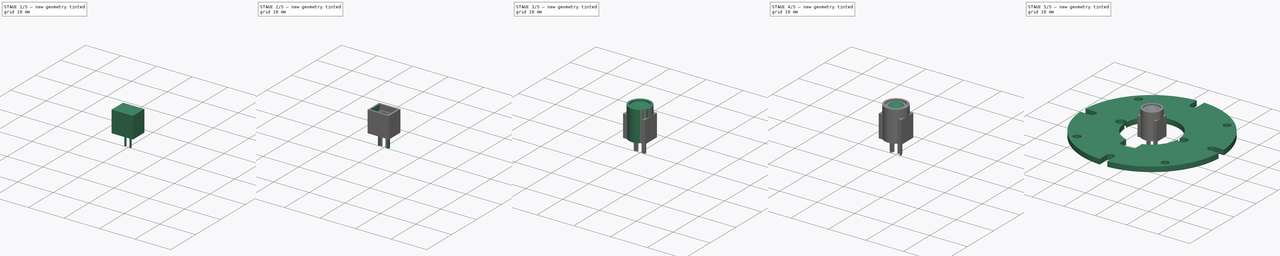
[diagram: build sequence overview — one tinted view per stage of 5, left to right]
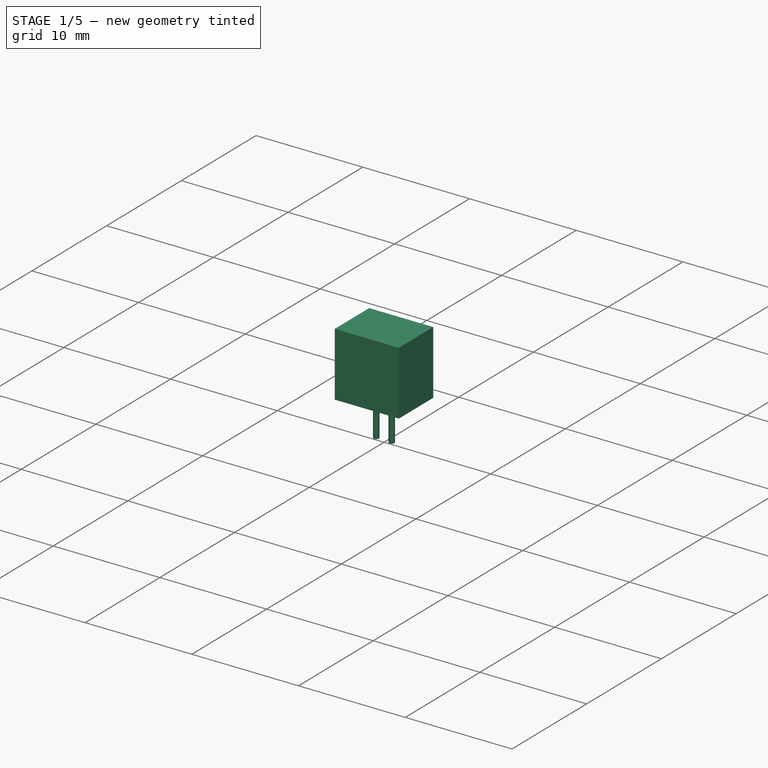
[diagram: stage 1 of 5 — iso view after this stage's code; geometry added in this stage tinted green]
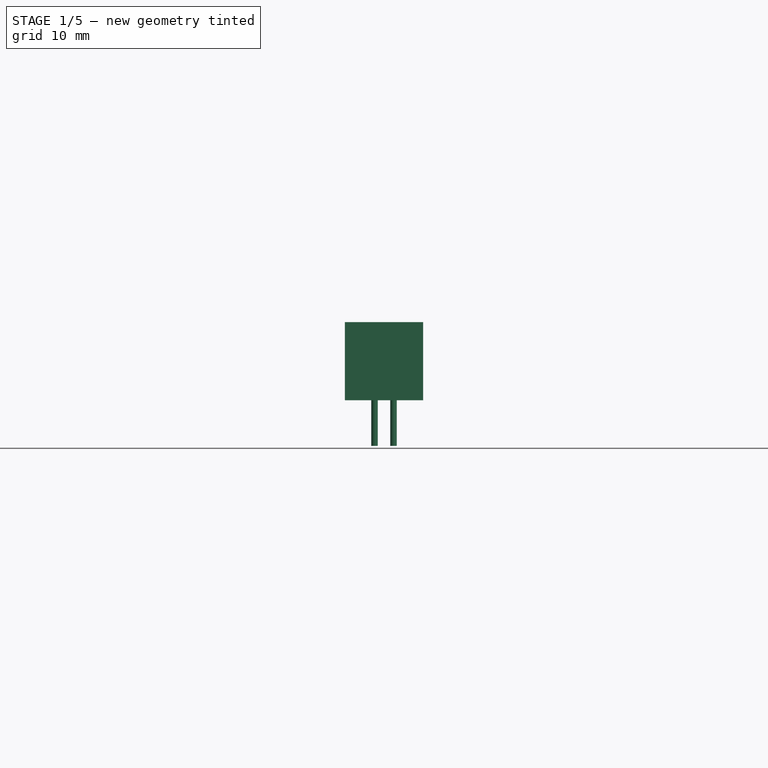
[diagram: stage 1 of 5 — front view after this stage's code; geometry added in this stage tinted green]
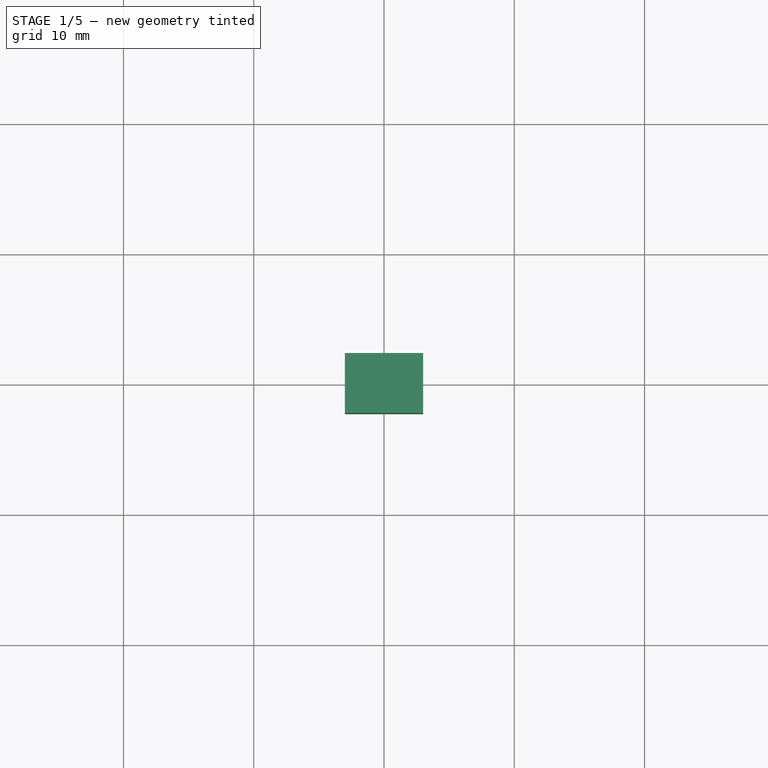
[diagram: stage 1 of 5 — top view after this stage's code; geometry added in this stage tinted green]
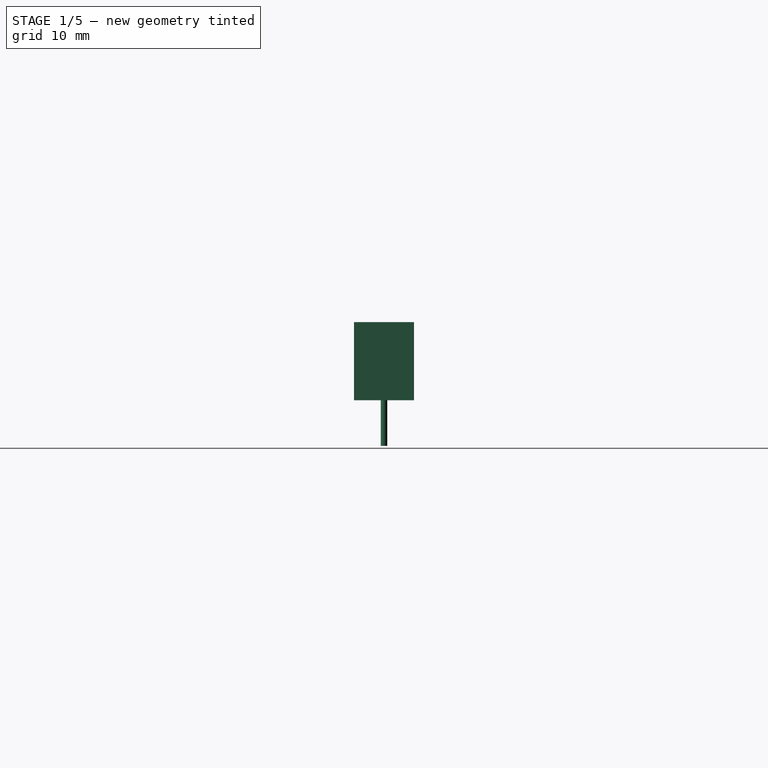
[diagram: stage 1 of 5 — right view after this stage's code; geometry added in this stage tinted green]
FCSTD DOCUMENT  (FreeCAD 0.21R33771 (Git))
Label: _LED-Ring
License: Creative Commons Attribution 4.0
LicenseURL: https://creativecommons.org/licenses/by/4.0/
objects: Sketcher::SketchObject×18, PartDesign::Pad×13, PartDesign::Body×9, PartDesign::Pocket×3, PartDesign::Revolution×2
note: 63 computed .brp shape members not serialized (recipe doc carries the construction recipe); baked Part::Feature solids carry a one-line shape summary decoded from their .brp

FEATURE [PartDesign::Body] Body006  label="Q1"
  Group = -> [Sketch011,Pad008]
  Origin = -> Origin006
  Tip = -> Pad008
FEATURE [Sketcher::SketchObject] Sketch012
  FullyConstrained = true
  MapMode = 5
  Support = -> [XY_Plane007]
  sketch-geometry (5):
    g0: LineSegment StartX=3 StartY=-2.3 StartZ=0 EndX=3 EndY=2.3 EndZ=0
    g1: LineSegment StartX=3 StartY=2.3 StartZ=0 EndX=-3 EndY=2.3 EndZ=0
    g2: LineSegment StartX=-3 StartY=2.3 StartZ=0 EndX=-3 EndY=-2.3 EndZ=0
    g3: LineSegment StartX=-3 StartY=-2.3 StartZ=0 EndX=3 EndY=-2.3 EndZ=0
    g4: GeomPoint X=0 Y=0 Z=0
  constraints (12):
    c: Coincident(g0,g1)
    c: Coincident(g1,g2)
    c: Coincident(g2,g3)
    c: Coincident(g3,g0)
    c: Horizontal(g1)
    c: Horizontal(g3)
    c: Vertical(g0)
    c: Vertical(g2)
    c: Symmetric(g1,g0,g4)
    c: Coincident(g4,g-1)
    c: DistanceY(g2,g2) = 4.6
    c: DistanceX(g1,g1) = 6
FEATURE [PartDesign::Pad] Pad009
  Direction = (0,0,1)
  Length = 6
  Length2 = 10
  Profile = -> Sketch012
  ReferenceAxis = -> Sketch012 [N_Axis]
  Refine = true
  Type = 0
FEATURE [PartDesign::Body] Body007  label="JST_12V"
  Group = -> [Sketch012,Pad009,Sketch013,Pocket001,Sketch014,Pad010]
  Origin = -> Origin007
  Tip = -> Pad010
FEATURE [Sketcher::SketchObject] Sketch015
  FullyConstrained = true
  MapMode = 5
  Support = -> [XY_Plane008]
  sketch-geometry (5):
    g0: LineSegment StartX=2.25 StartY=-1.9 StartZ=0 EndX=2.25 EndY=1.9 EndZ=0
    g1: LineSegment StartX=2.25 StartY=1.9 StartZ=0 EndX=-2.25 EndY=1.9 EndZ=0
    g2: LineSegment StartX=-2.25 StartY=1.9 StartZ=0 EndX=-2.25 EndY=-1.9 EndZ=0
    g3: LineSegment StartX=-2.25 StartY=-1.9 StartZ=0 EndX=2.25 EndY=-1.9 EndZ=0
    g4: GeomPoint X=0 Y=0 Z=0
  constraints (12):
    c: Coincident(g0,g1)
    c: Coincident(g1,g2)
    c: Coincident(g2,g3)
    c: Coincident(g3,g0)
    c: Horizontal(g1)
    c: Horizontal(g3)
    c: Vertical(g0)
    c: Vertical(g2)
    c: Symmetric(g1,g0,g4)
    c: Coincident(g4,g-1)
    c: DistanceY(g2,g2) = 3.8
    c: DistanceX(g1,g1) = 4.5
FEATURE [PartDesign::Pad] Pad011
  Direction = (0,0,1)
  Length = 4.5
  Length2 = 10
  Profile = -> Sketch015
  ReferenceAxis = -> Sketch015 [N_Axis]
  Refine = true
  Type = 0
FEATURE [Sketcher::SketchObject] Sketch016
  AttachmentOffset = pos=(0,0,4.5) rot=(0,0,1;0rad)
  FullyConstrained = true
  MapMode = 5
  Placement = pos=(0,0,4.5) rot=(0,0,1;0rad)
  Support = -> [XY_Plane008]
  expr: .AttachmentOffset.Base.z = Pad011.Length
  sketch-geometry (4):
    g0: LineSegment StartX=1.85 StartY=-1.5 StartZ=0 EndX=1.85 EndY=1.5 EndZ=0
    g1: LineSegment StartX=1.85 StartY=1.5 StartZ=0 EndX=-1.85 EndY=1.5 EndZ=0
    g2: LineSegment StartX=-1.85 StartY=1.5 StartZ=0 EndX=-1.85 EndY=-1.5 EndZ=0
    g3: LineSegment StartX=-1.85 StartY=-1.5 StartZ=0 EndX=1.85 EndY=-1.5 EndZ=0
  constraints (11):
    c: Coincident(g0,g1)
    c: Coincident(g1,g2)
    c: Coincident(g2,g3)
    c: Coincident(g3,g0)
    c: Horizontal(g1)
    c: Horizontal(g3)
    c: Vertical(g0)
    c: Vertical(g2)
    c: DistanceX(g1,g1) = 3.7
    c: DistanceY(g2,g2) = 3
    c: Symmetric(g2,g0,g-1)
FEATURE [PartDesign::Pocket] Pocket002
  BaseFeature = -> Pad011
  Direction = (0,0,-1)
  Length = 3.9
  Length2 = 5
  Profile = -> Sketch016
  ReferenceAxis = -> Sketch016 [N_Axis]
  Refine = true
  Type = 0
FEATURE [Sketcher::SketchObject] Sketch017
  FullyConstrained = true
  MapMode = 5
  Support = -> [XY_Plane008]
  sketch-geometry (2):
    g0: Circle CenterX=-0.73 CenterY=0 CenterZ=0 NormalX=0 NormalY=0 NormalZ=1 AngleXU=0 Radius=0.25
    g1: Circle CenterX=0.73 CenterY=0 CenterZ=0 NormalX=0 NormalY=0 NormalZ=1 AngleXU=0 Radius=0.25
  constraints (5):
    c: PointOnObject(g0,g-1)
    c: DistanceX(g0,g1) = 1.46
    c: Equal(g0,g1)
    c: Diameter(g0) = 0.5
    c: Symmetric(g0,g1,g-2)
FEATURE [PartDesign::Pad] Pad012
  BaseFeature = -> Pocket002
  Direction = (0,0,1)
  Length = 3.5
  Length2 = 3.5
  Profile = -> Sketch017
  ReferenceAxis = -> Sketch017 [N_Axis]
  Refine = true
  Type = 4
FEATURE [PartDesign::Body] Body008  label="JST_IRC"
  Group = -> [Sketch015,Pad011,Sketch016,Pocket002,Sketch017,Pad012]
  Origin = -> Origin008
  Tip = -> Pad012
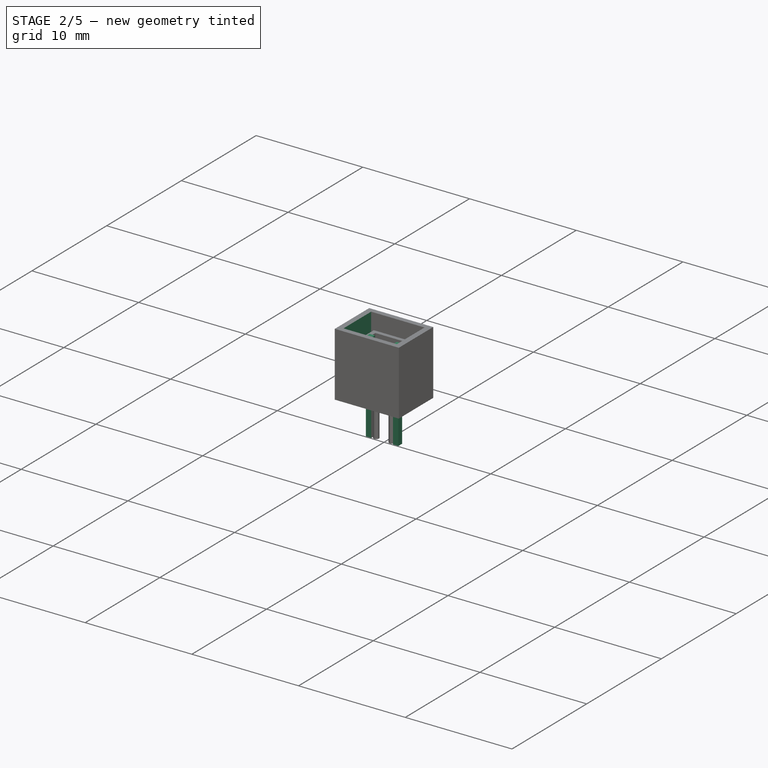
[diagram: stage 2 of 5 — iso view after this stage's code; geometry added in this stage tinted green]
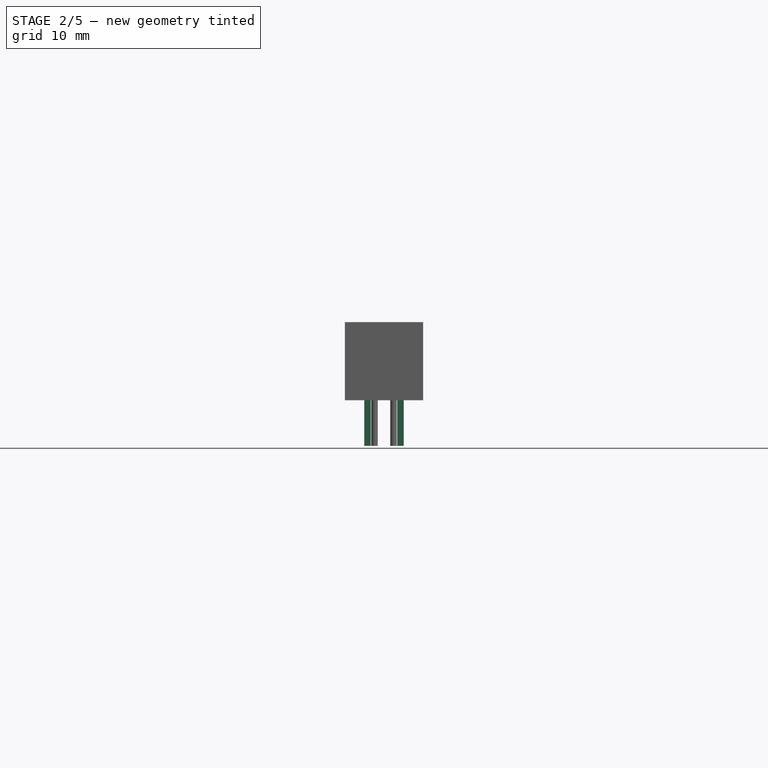
[diagram: stage 2 of 5 — front view after this stage's code; geometry added in this stage tinted green]
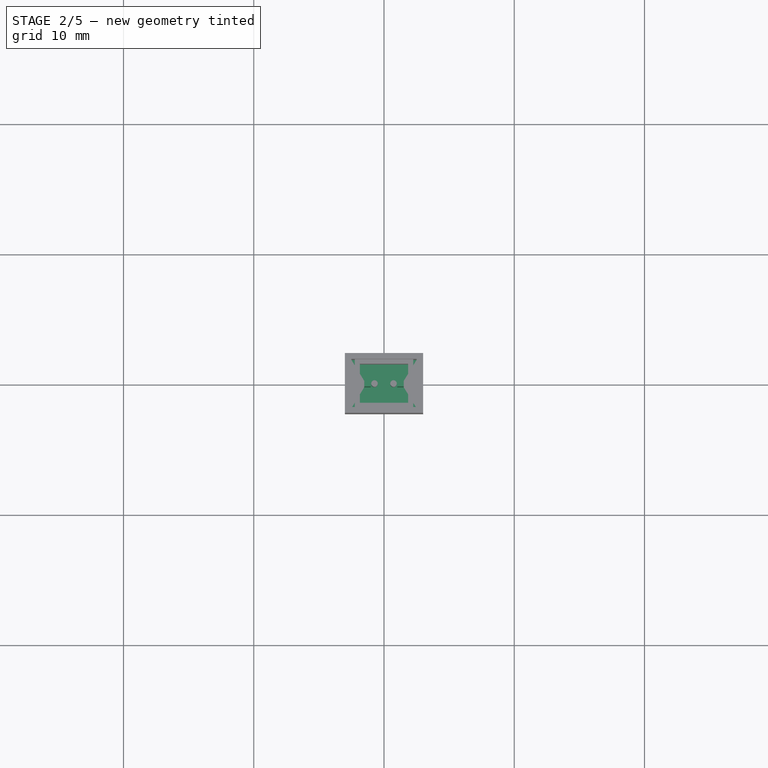
[diagram: stage 2 of 5 — top view after this stage's code; geometry added in this stage tinted green]
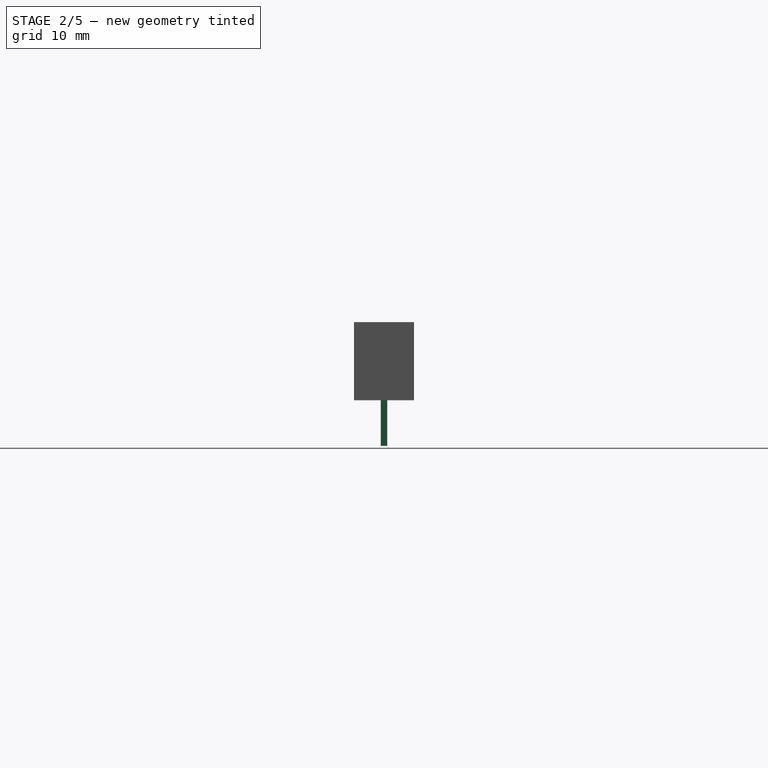
[diagram: stage 2 of 5 — right view after this stage's code; geometry added in this stage tinted green]
FEATURE [PartDesign::Body] Body005  label="Q2"
  Group = -> [Sketch010,Pad007]
  Origin = -> Origin005
  Tip = -> Pad007
FEATURE [Sketcher::SketchObject] Sketch011
  FullyConstrained = true
  MapMode = 5
  Support = -> [XY_Plane006]
  sketch-geometry (5):
    g0: LineSegment StartX=-1.5 StartY=-0.65 StartZ=0 EndX=-1.5 EndY=0.65 EndZ=0
    g1: LineSegment StartX=-1.5 StartY=0.65 StartZ=0 EndX=1.5 EndY=0.65 EndZ=0
    g2: LineSegment StartX=1.5 StartY=0.65 StartZ=0 EndX=1.5 EndY=-0.65 EndZ=0
    g3: LineSegment StartX=1.5 StartY=-0.65 StartZ=0 EndX=-1.5 EndY=-0.65 EndZ=0
    g4: GeomPoint X=0 Y=0 Z=0
  constraints (12):
    c: Coincident(g0,g1)
    c: Coincident(g1,g2)
    c: Coincident(g2,g3)
    c: Coincident(g3,g0)
    c: Horizontal(g1)
    c: Horizontal(g3)
    c: Vertical(g0)
    c: Vertical(g2)
    c: Symmetric(g1,g0,g4)
    c: Coincident(g4,g-1)
    c: DistanceX(g1,g1) = 3
    c: DistanceY(g0,g0) = 1.3
FEATURE [PartDesign::Pad] Pad008
  Direction = (0,0,1)
  Length = 0.9
  Length2 = 10
  Profile = -> Sketch011
  ReferenceAxis = -> Sketch011 [N_Axis]
  Refine = true
  Type = 0
FEATURE [Sketcher::SketchObject] Sketch013
  AttachmentOffset = pos=(0,0,6) rot=(0,0,1;0rad)
  FullyConstrained = true
  MapMode = 5
  Placement = pos=(0,0,6) rot=(0,0,1;0rad)
  Support = -> [XY_Plane007]
  expr: .AttachmentOffset.Base.z = Pad009.Length
  sketch-geometry (4):
    g0: LineSegment StartX=2.5 StartY=-1.85 StartZ=0 EndX=2.5 EndY=1.85 EndZ=0
    g1: LineSegment StartX=2.5 StartY=1.85 StartZ=0 EndX=-2.5 EndY=1.85 EndZ=0
    g2: LineSegment StartX=-2.5 StartY=1.85 StartZ=0 EndX=-2.5 EndY=-1.85 EndZ=0
    g3: LineSegment StartX=-2.5 StartY=-1.85 StartZ=0 EndX=2.5 EndY=-1.85 EndZ=0
  constraints (11):
    c: Coincident(g0,g1)
    c: Coincident(g1,g2)
    c: Coincident(g2,g3)
    c: Coincident(g3,g0)
    c: Horizontal(g1)
    c: Horizontal(g3)
    c: Vertical(g0)
    c: Vertical(g2)
    c: DistanceX(g1,g1) = 5
    c: DistanceY(g2,g2) = 3.7
    c: Symmetric(g2,g0,g-1)
FEATURE [PartDesign::Pocket] Pocket001
  BaseFeature = -> Pad009
  Direction = (0,0,-1)
  Length = 5
  Length2 = 5
  Profile = -> Sketch013
  ReferenceAxis = -> Sketch013 [N_Axis]
  Refine = true
  Type = 0
FEATURE [Sketcher::SketchObject] Sketch014
  FullyConstrained = true
  MapMode = 5
  Support = -> [XY_Plane007]
  sketch-geometry (10):
    g0: LineSegment StartX=-1.52 StartY=-0.25 StartZ=0 EndX=-1.52 EndY=0.25 EndZ=0
    g1: LineSegment StartX=-1.52 StartY=0.25 StartZ=0 EndX=-1.02 EndY=0.25 EndZ=0
    g2: LineSegment StartX=-1.02 StartY=0.25 StartZ=0 EndX=-1.02 EndY=-0.25 EndZ=0
    g3: LineSegment StartX=-1.02 StartY=-0.25 StartZ=0 EndX=-1.52 EndY=-0.25 EndZ=0
    g4: GeomPoint X=-1.27 Y=0 Z=0
    g5: LineSegment StartX=1.02 StartY=-0.25 StartZ=0 EndX=1.02 EndY=0.25 EndZ=0
    g6: LineSegment StartX=1.02 StartY=0.25 StartZ=0 EndX=1.52 EndY=0.25 EndZ=0
    g7: LineSegment StartX=1.52 StartY=0.25 StartZ=0 EndX=1.52 EndY=-0.25 EndZ=0
    g8: LineSegment StartX=1.52 StartY=-0.25 StartZ=0 EndX=1.02 EndY=-0.25 EndZ=0
    g9: GeomPoint X=1.27 Y=0 Z=0
  constraints (25):
    c: Coincident(g0,g1)
    c: Coincident(g1,g2)
    c: Coincident(g2,g3)
    c: Coincident(g3,g0)
    c: Horizontal(g1)
    c: Horizontal(g3)
    c: Vertical(g0)
    c: Vertical(g2)
    c: Symmetric(g1,g0,g4)
    c: PointOnObject(g4,g-1)
    c: Coincident(g5,g6)
    c: Coincident(g6,g7)
    c: Coincident(g7,g8)
    c: Coincident(g8,g5)
    c: Horizontal(g6)
    c: Horizontal(g8)
    c: Vertical(g5)
    c: Vertical(g7)
    c: Symmetric(g6,g5,g9)
    c: Equal(g3,g2)
    c: Equal(g2,g5)
    c: Equal(g5,g8)
    c: DistanceX(g1,g1) = 0.5
    c: DistanceX(g4,g9) = 2.54
    c: Symmetric(g4,g9,g-2)
FEATURE [PartDesign::Pad] Pad010
  BaseFeature = -> Pocket001
  Direction = (0,0,1)
  Length = 5
  Length2 = 3.5
  Profile = -> Sketch014
  ReferenceAxis = -> Sketch014 [N_Axis]
  Refine = true
  Type = 4
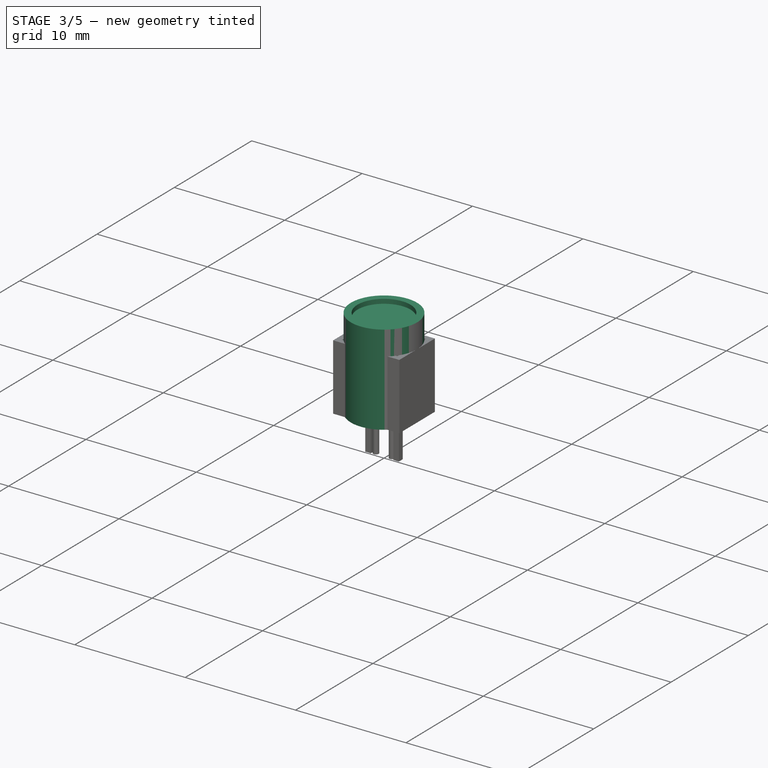
[diagram: stage 3 of 5 — iso view after this stage's code; geometry added in this stage tinted green]
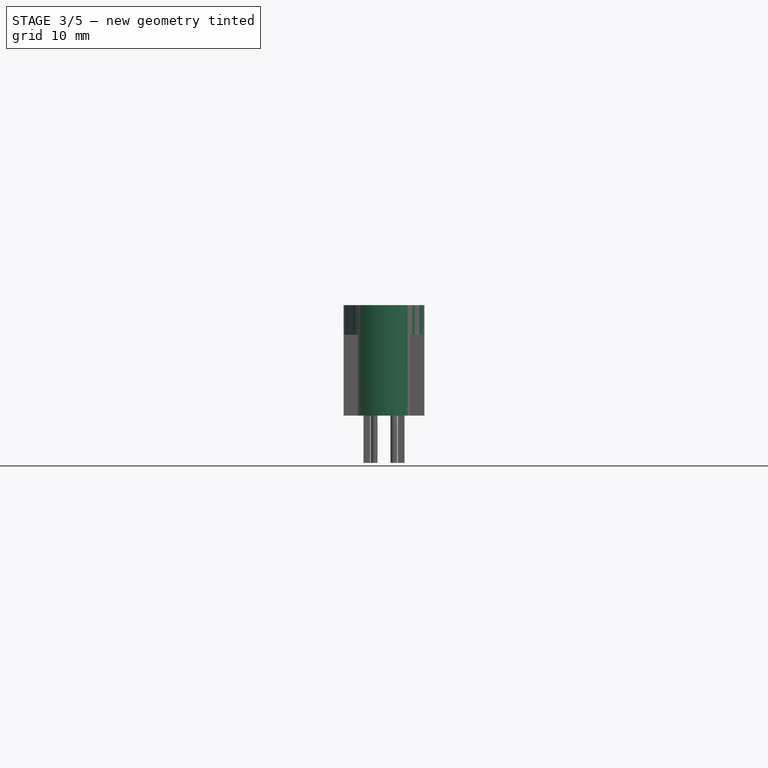
[diagram: stage 3 of 5 — front view after this stage's code; geometry added in this stage tinted green]
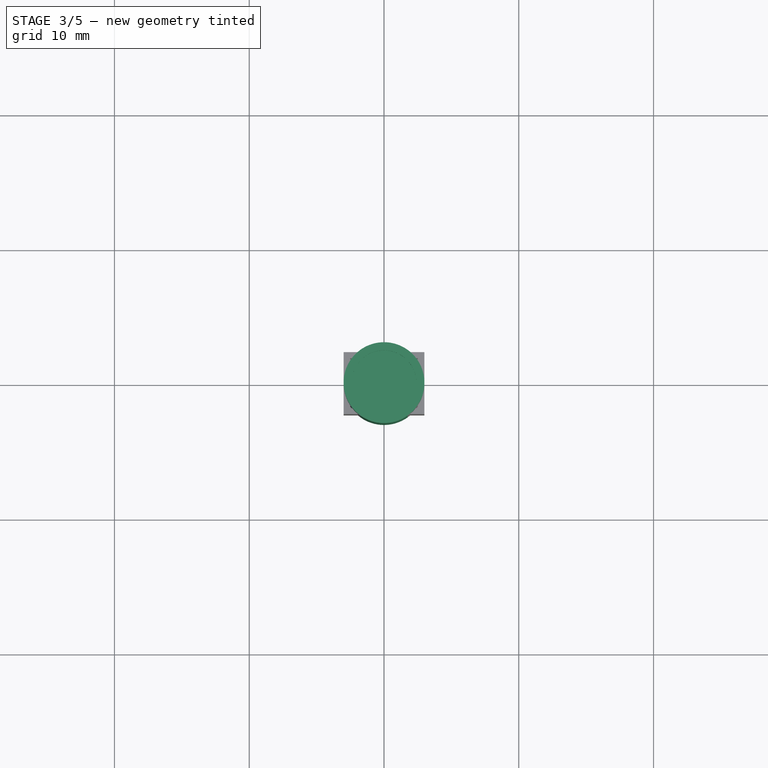
[diagram: stage 3 of 5 — top view after this stage's code; geometry added in this stage tinted green]
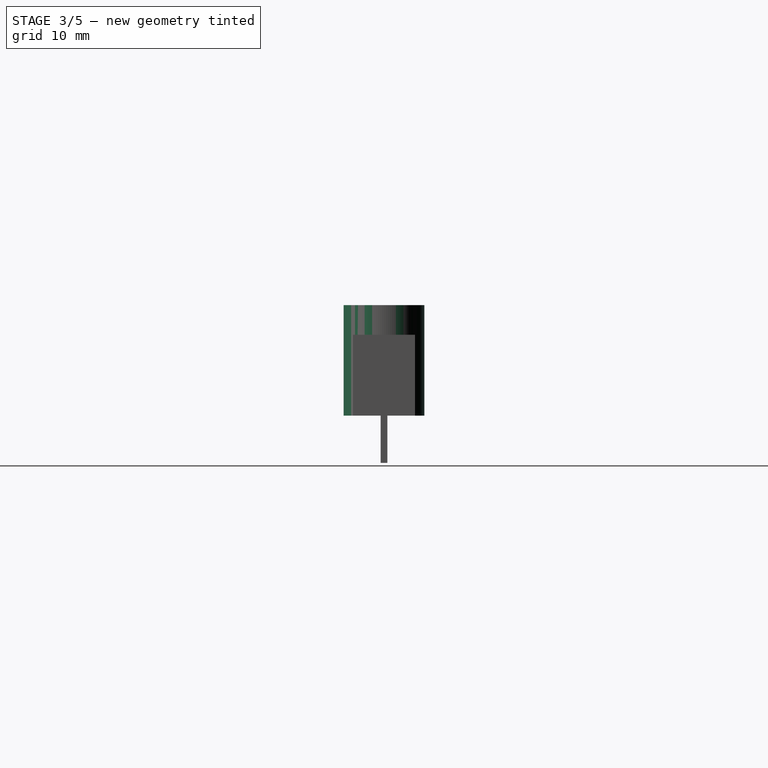
[diagram: stage 3 of 5 — right view after this stage's code; geometry added in this stage tinted green]
FEATURE [PartDesign::Body] Body001  label="LED_5mm"
  Group = -> [Sketch003,Revolution,Sketch004,Pocket,Sketch005,Pad003]
  Origin = -> Origin001
  Tip = -> Pad003
FEATURE [Sketcher::SketchObject] Sketch006
  FullyConstrained = true
  MapMode = 5
  Placement = pos=(0,0,0) rot=(1,0,0;1.5708rad)
  Support = -> [XZ_Plane002]
  sketch-geometry (6):
    g0: LineSegment StartX=0 StartY=0 StartZ=0 EndX=0 EndY=7.8 EndZ=0
    g1: LineSegment StartX=0 StartY=7.8 StartZ=0 EndX=2.4 EndY=7.8 EndZ=0
    g2: LineSegment StartX=2.4 StartY=7.8 StartZ=0 EndX=2.4 EndY=8.2 EndZ=0
    g3: LineSegment StartX=2.4 StartY=8.2 StartZ=0 EndX=3 EndY=8.2 EndZ=0
    g4: LineSegment StartX=3 StartY=8.2 StartZ=0 EndX=3 EndY=0 EndZ=0
    g5: LineSegment StartX=3 StartY=0 StartZ=0 EndX=0 EndY=0 EndZ=0
  constraints (17):
    c: Coincident(g-1,g0)
    c: PointOnObject(g0,g-2)
    c: Coincident(g0,g1)
    c: Horizontal(g1)
    c: Coincident(g1,g2)
    c: Vertical(g2)
    c: Coincident(g2,g3)
    c: Horizontal(g3)
    c: Coincident(g3,g4)
    c: PointOnObject(g4,g-1)
    c: Vertical(g4)
    c: Coincident(g4,g5)
    c: Coincident(g5,g0)
    c: DistanceY(g4,g4) = 8.2
    c: DistanceY(g0,g2) = 0.4
    c: DistanceX(g0,g3) = 3
    c: DistanceX(g3,g3) = 0.6
FEATURE [PartDesign::Revolution] Revolution001
  Angle = 360
  Axis = (0,2e-16,1)
  Base = (0,0,0)
  Placement = pos=(0,0,0) rot=(1,0,0;1.5708rad)
  Profile = -> Sketch006
  ReferenceAxis = -> Sketch006 [V_Axis]
  Refine = true
  Reversed = true
FEATURE [PartDesign::Body] Body002  label="LDR_6mm"
  Group = -> [Sketch006,Revolution001,Sketch007,Pad004]
  Origin = -> Origin002
  Tip = -> Pad004
FEATURE [Sketcher::SketchObject] Sketch008
  FullyConstrained = true
  MapMode = 5
  Support = -> [XY_Plane003]
  sketch-geometry (5):
    g0: LineSegment StartX=-1 StartY=-0.625 StartZ=0 EndX=-1 EndY=0.625 EndZ=0
    g1: LineSegment StartX=-1 StartY=0.625 StartZ=0 EndX=1 EndY=0.625 EndZ=0
    g2: LineSegment StartX=1 StartY=0.625 StartZ=0 EndX=1 EndY=-0.625 EndZ=0
    g3: LineSegment StartX=1 StartY=-0.625 StartZ=0 EndX=-1 EndY=-0.625 EndZ=0
    g4: GeomPoint X=0 Y=0 Z=0
  constraints (12):
    c: Coincident(g0,g1)
    c: Coincident(g1,g2)
    c: Coincident(g2,g3)
    c: Coincident(g3,g0)
    c: Horizontal(g1)
    c: Horizontal(g3)
    c: Vertical(g0)
    c: Vertical(g2)
    c: Symmetric(g1,g0,g4)
    c: Coincident(g4,g-1)
    c: DistanceY(g0,g0) = 1.25
    c: DistanceX(g1,g1) = 2
FEATURE [PartDesign::Pad] Pad005
  Direction = (0,0,1)
  Length = 0.7
  Length2 = 10
  Profile = -> Sketch008
  ReferenceAxis = -> Sketch008 [N_Axis]
  Refine = true
  Type = 0
FEATURE [PartDesign::Body] Body003  label="R0805"
  Group = -> [Sketch008,Pad005]
  Origin = -> Origin003
  Tip = -> Pad005
FEATURE [Sketcher::SketchObject] Sketch009
  FullyConstrained = true
  MapMode = 5
  Support = -> [XY_Plane004]
  sketch-geometry (5):
    g0: LineSegment StartX=-1.6 StartY=-0.8 StartZ=0 EndX=-1.6 EndY=0.8 EndZ=0
    g1: LineSegment StartX=-1.6 StartY=0.8 StartZ=0 EndX=1.6 EndY=0.8 EndZ=0
    g2: LineSegment StartX=1.6 StartY=0.8 StartZ=0 EndX=1.6 EndY=-0.8 EndZ=0
    g3: LineSegment StartX=1.6 StartY=-0.8 StartZ=0 EndX=-1.6 EndY=-0.8 EndZ=0
    g4: GeomPoint X=0 Y=0 Z=0
  constraints (12):
    c: Coincident(g0,g1)
    c: Coincident(g1,g2)
    c: Coincident(g2,g3)
    c: Coincident(g3,g0)
    c: Horizontal(g1)
    c: Horizontal(g3)
    c: Vertical(g0)
    c: Vertical(g2)
    c: Symmetric(g1,g0,g4)
    c: Coincident(g4,g-1)
    c: DistanceY(g0,g0) = 1.6
    c: DistanceX(g1,g1) = 3.2
FEATURE [PartDesign::Pad] Pad006
  Direction = (0,0,1)
  Length = 0.7
  Length2 = 10
  Profile = -> Sketch009
  ReferenceAxis = -> Sketch009 [N_Axis]
  Refine = true
  Type = 0
FEATURE [PartDesign::Body] Body004  label="R1206"
  Group = -> [Sketch009,Pad006]
  Origin = -> Origin004
  Tip = -> Pad006
FEATURE [Sketcher::SketchObject] Sketch010
  FullyConstrained = true
  MapMode = 5
  Support = -> [XY_Plane005]
  sketch-geometry (5):
    g0: LineSegment StartX=-2.275 StartY=-1.25 StartZ=0 EndX=-2.275 EndY=1.25 EndZ=0
    g1: LineSegment StartX=-2.275 StartY=1.25 StartZ=0 EndX=2.275 EndY=1.25 EndZ=0
    g2: LineSegment StartX=2.275 StartY=1.25 StartZ=0 EndX=2.275 EndY=-1.25 EndZ=0
    g3: LineSegment StartX=2.275 StartY=-1.25 StartZ=0 EndX=-2.275 EndY=-1.25 EndZ=0
    g4: GeomPoint X=0 Y=0 Z=0
  constraints (12):
    c: Coincident(g0,g1)
    c: Coincident(g1,g2)
    c: Coincident(g2,g3)
    c: Coincident(g3,g0)
    c: Horizontal(g1)
    c: Horizontal(g3)
    c: Vertical(g0)
    c: Vertical(g2)
    c: Symmetric(g1,g0,g4)
    c: Coincident(g4,g-1)
    c: DistanceY(g0,g0) = 2.5
    c: DistanceX(g1,g1) = 4.55
FEATURE [PartDesign::Pad] Pad007
  Direction = (0,0,1)
  Length = 1.6
  Length2 = 10
  Profile = -> Sketch010
  ReferenceAxis = -> Sketch010 [N_Axis]
  Refine = true
  Type = 0
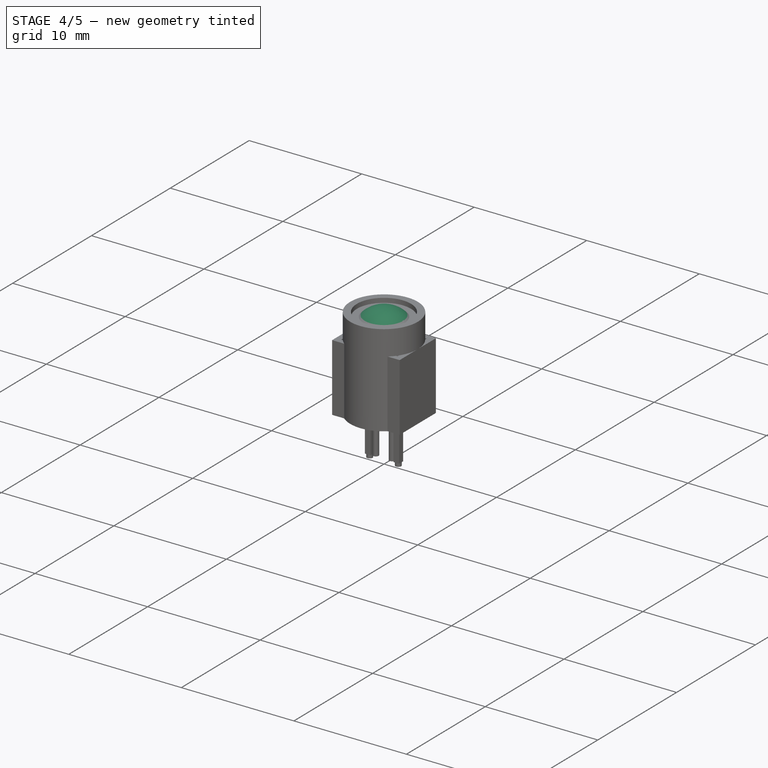
[diagram: stage 4 of 5 — iso view after this stage's code; geometry added in this stage tinted green]
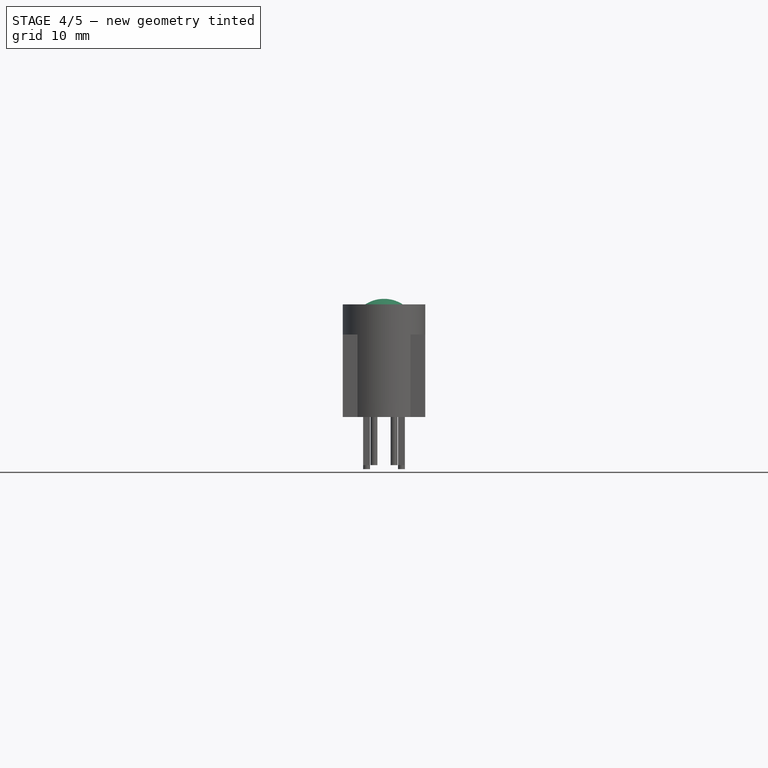
[diagram: stage 4 of 5 — front view after this stage's code; geometry added in this stage tinted green]
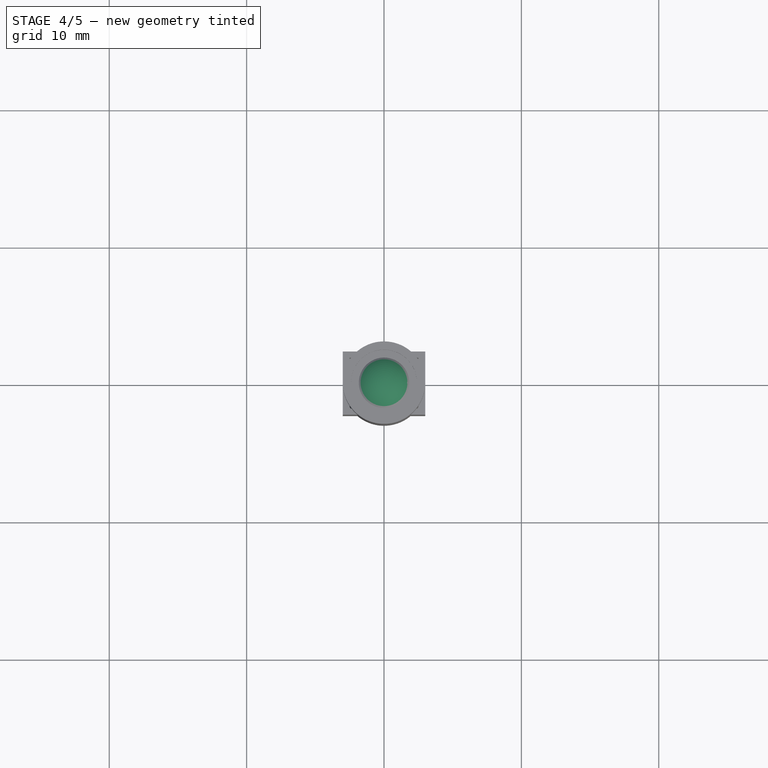
[diagram: stage 4 of 5 — top view after this stage's code; geometry added in this stage tinted green]
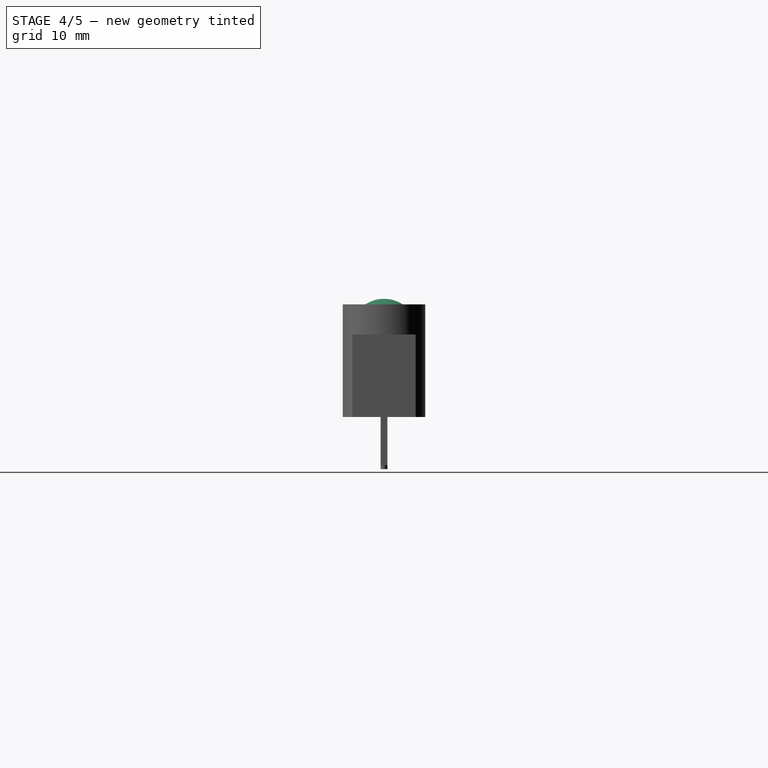
[diagram: stage 4 of 5 — right view after this stage's code; geometry added in this stage tinted green]
FEATURE [PartDesign::Body] Body  label="PCB"
  Group = -> [Sketch,Pad,Sketch001,Pad001,Sketch002,Pad002]
  Origin = -> Origin
  Tip = -> Pad002
FEATURE [Sketcher::SketchObject] Sketch003
  FullyConstrained = true
  MapMode = 5
  Placement = pos=(0,0,0) rot=(1,0,0;1.5708rad)
  Support = -> [XZ_Plane001]
  sketch-geometry (6):
    g0: LineSegment StartX=0 StartY=0 StartZ=0 EndX=3 EndY=0 EndZ=0
    g1: LineSegment StartX=3 StartY=0 StartZ=0 EndX=3 EndY=1 EndZ=0
    g2: LineSegment StartX=3 StartY=1 StartZ=0 EndX=2.5 EndY=1 EndZ=0
    g3: LineSegment StartX=2.5 StartY=1 StartZ=0 EndX=2.5 EndY=6.1 EndZ=0
    g4: ArcOfCircle CenterX=0 CenterY=6.1 CenterZ=0 NormalX=0 NormalY=0 NormalZ=1 AngleXU=0 Radius=2.5 StartAngle=0 EndAngle=1.5708
    g5: LineSegment StartX=0 StartY=8.6 StartZ=0 EndX=0 EndY=0 EndZ=0
  constraints (17):
    c: Coincident(g-1,g0)
    c: PointOnObject(g0,g-1)
    c: Coincident(g0,g1)
    c: Vertical(g1)
    c: Coincident(g1,g2)
    c: Horizontal(g2)
    c: Coincident(g2,g3)
    c: Vertical(g3)
    c: Tangent(g3,g4) = -1.5708
    c: PointOnObject(g4,g-2)
    c: PointOnObject(g4,g-2)
    c: Coincident(g5,g4)
    c: Coincident(g5,g0)
    c: DistanceY(g1,g1) = 1
    c: DistanceX(g4,g3) = 2.5
    c: DistanceY(g5,g5) = 8.6
    c: DistanceX(g0,g0) = 3
FEATURE [PartDesign::Revolution] Revolution
  Angle = 360
  Axis = (0,2e-16,1)
  Base = (0,0,0)
  Placement = pos=(0,0,0) rot=(1,0,0;1.5708rad)
  Profile = -> Sketch003
  ReferenceAxis = -> Sketch003 [V_Axis]
  Refine = true
  Reversed = true
FEATURE [Sketcher::SketchObject] Sketch004
  FullyConstrained = true
  MapMode = 5
  Support = -> [XY_Plane001]
  sketch-geometry (4):
    g0: LineSegment StartX=2.5 StartY=3 StartZ=0 EndX=4.5 EndY=3 EndZ=0
    g1: LineSegment StartX=4.5 StartY=3 StartZ=0 EndX=4.5 EndY=-3 EndZ=0
    g2: LineSegment StartX=4.5 StartY=-3 StartZ=0 EndX=2.5 EndY=-3 EndZ=0
    g3: LineSegment StartX=2.5 StartY=-3 StartZ=0 EndX=2.5 EndY=3 EndZ=0
  constraints (11):
    c: Coincident(g0,g1)
    c: Coincident(g1,g2)
    c: Coincident(g2,g3)
    c: Coincident(g3,g0)
    c: Horizontal(g0)
    c: Horizontal(g2)
    c: Vertical(g3)
    c: Symmetric(g1,g0,g-1)
    c: DistanceX(g2,g2) = 2
    c: DistanceX(g-1,g2) = 2.5
    c: DistanceY(g1,g1) = 6
FEATURE [PartDesign::Pocket] Pocket
  BaseFeature = -> Revolution
  Direction = (0,0,-1)
  Length = 5
  Length2 = 5
  Placement = pos=(0,0,0) rot=(1,0,0;1.5708rad)
  Profile = -> Sketch004
  ReferenceAxis = -> Sketch004 [N_Axis]
  Refine = true
  Reversed = true
  Type = 1
FEATURE [Sketcher::SketchObject] Sketch007
  FullyConstrained = true
  MapMode = 5
  Support = -> [XY_Plane002]
  sketch-geometry (2):
    g0: Circle CenterX=-1.27 CenterY=0 CenterZ=0 NormalX=0 NormalY=0 NormalZ=1 AngleXU=0 Radius=0.25
    g1: Circle CenterX=1.27 CenterY=0 CenterZ=0 NormalX=0 NormalY=0 NormalZ=1 AngleXU=0 Radius=0.25
  constraints (5):
    c: PointOnObject(g0,g-1)
    c: Equal(g0,g1)
    c: Diameter(g0) = 0.5
    c: Symmetric(g1,g0,g-2)
    c: DistanceX(g0,g1) = 2.54
FEATURE [PartDesign::Pad] Pad004
  BaseFeature = -> Revolution001
  Direction = (0,0,1)
  Length = 3.8
  Length2 = 10
  Placement = pos=(0,0,0) rot=(1,0,0;1.5708rad)
  Profile = -> Sketch007
  ReferenceAxis = -> Sketch007 [N_Axis]
  Refine = true
  Reversed = true
  Type = 0
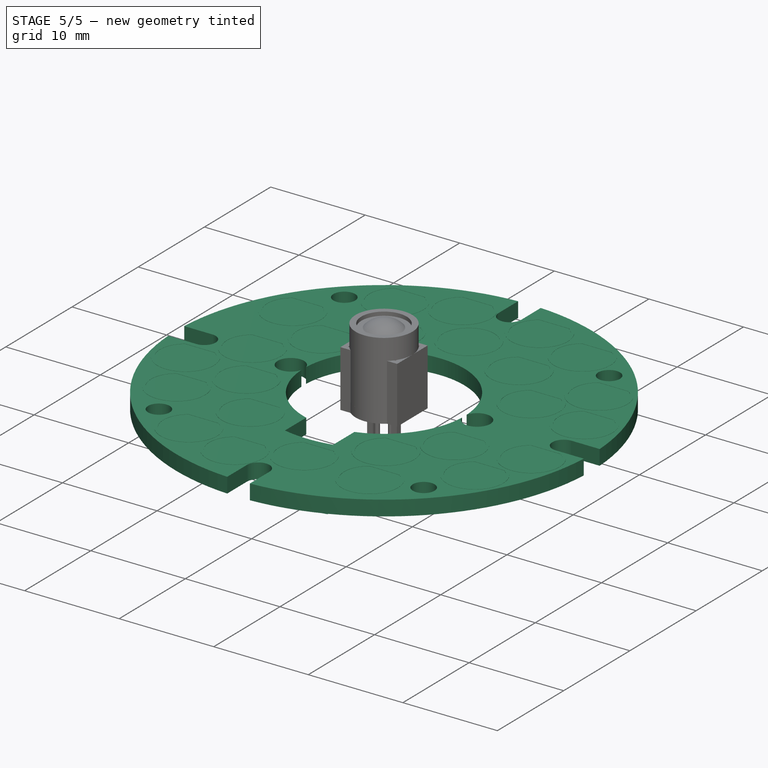
[diagram: stage 5 of 5 — iso view after this stage's code; geometry added in this stage tinted green]
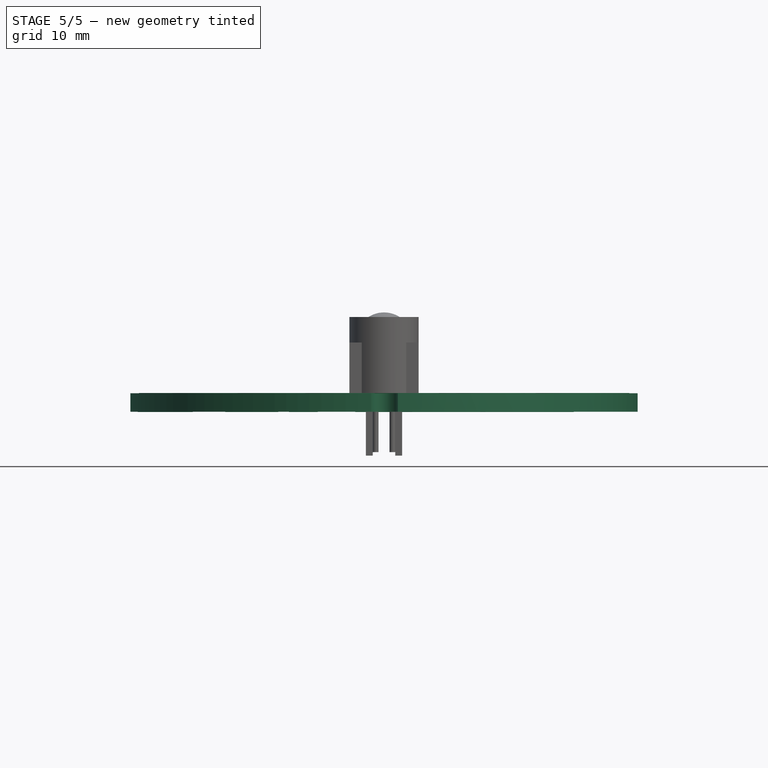
[diagram: stage 5 of 5 — front view after this stage's code; geometry added in this stage tinted green]
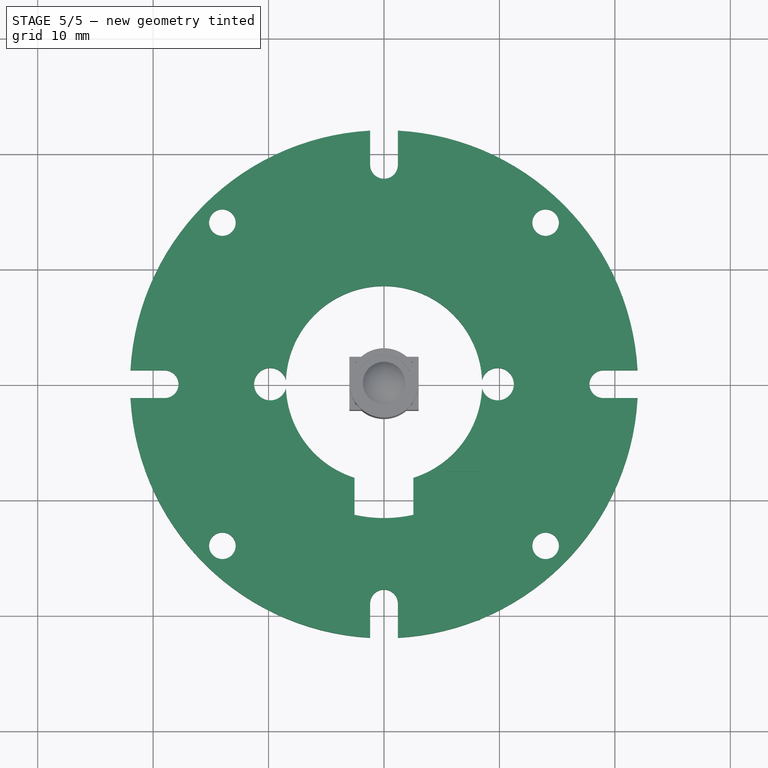
[diagram: stage 5 of 5 — top view after this stage's code; geometry added in this stage tinted green]
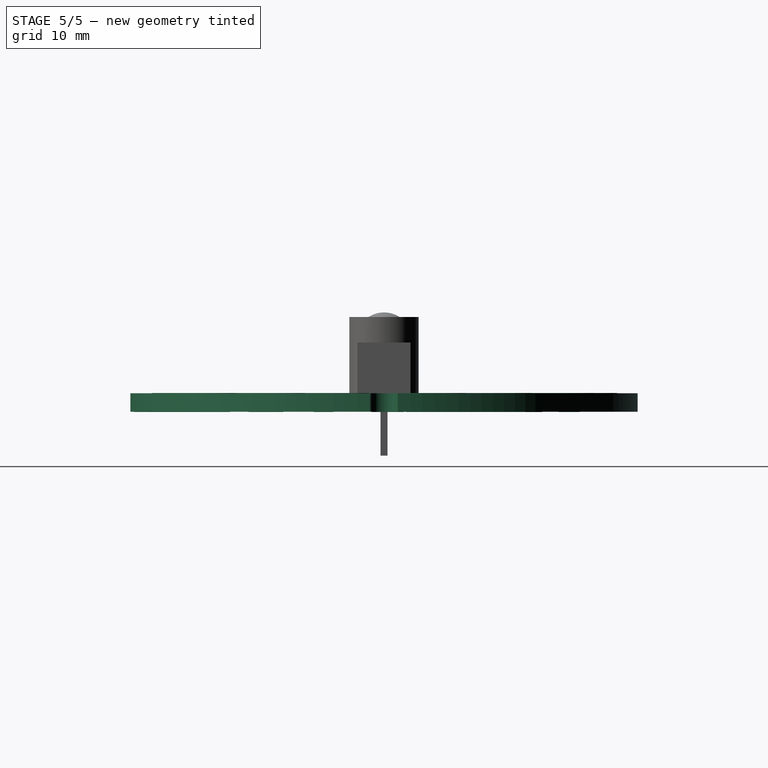
[diagram: stage 5 of 5 — right view after this stage's code; geometry added in this stage tinted green]
FEATURE [Sketcher::SketchObject] Sketch
  FullyConstrained = true
  MapMode = 5
  Support = -> [XY_Plane]
  sketch-geometry (31):
    g0: ArcOfCircle CenterX=0 CenterY=3e-16 CenterZ=0 NormalX=0 NormalY=0 NormalZ=1 AngleXU=0 Radius=22 StartAngle=0.0545725 EndAngle=1.51622
    g1: LineSegment StartX=-21.9672 StartY=1.2 StartZ=0 EndX=-19 EndY=1.2 EndZ=0
    g2: ArcOfCircle CenterX=-19 CenterY=0 CenterZ=0 NormalX=0 NormalY=0 NormalZ=1 AngleXU=0 Radius=1.2 StartAngle=4.71239 EndAngle=7.85398
    g3: LineSegment StartX=-19 StartY=-1.2 StartZ=0 EndX=-21.9672 EndY=-1.2 EndZ=0
    g4: LineSegment StartX=-1.2 StartY=21.9672 StartZ=0 EndX=-1.2 EndY=19 EndZ=0
    g5: ArcOfCircle CenterX=0 CenterY=19 CenterZ=0 NormalX=0 NormalY=0 NormalZ=1 AngleXU=0 Radius=1.2 StartAngle=3.14159 EndAngle=6.28319
    g6: LineSegment StartX=1.2 StartY=19 StartZ=0 EndX=1.2 EndY=21.9672 EndZ=0
    g7: LineSegment StartX=21.9672 StartY=1.2 StartZ=0 EndX=19 EndY=1.2 EndZ=0
    g8: ArcOfCircle CenterX=19 CenterY=0 CenterZ=0 NormalX=0 NormalY=0 NormalZ=1 AngleXU=0 Radius=1.2 StartAngle=1.5708 EndAngle=4.71239
    g9: LineSegment StartX=19 StartY=-1.2 StartZ=0 EndX=21.9672 EndY=-1.2 EndZ=0
    g10: Circle CenterX=0 CenterY=3e-16 CenterZ=0 NormalX=0 NormalY=0 NormalZ=1 AngleXU=0 Radius=19
    g11: ArcOfCircle CenterX=0 CenterY=3e-16 CenterZ=0 NormalX=0 NormalY=0 NormalZ=1 AngleXU=0 Radius=22 StartAngle=1.62537 EndAngle=3.08702
    g12: ArcOfCircle CenterX=0 CenterY=3e-16 CenterZ=0 NormalX=0 NormalY=0 NormalZ=1 AngleXU=0 Radius=22 StartAngle=3.19617 EndAngle=4.65782
    g13: LineSegment StartX=-1.2 StartY=-21.9672 StartZ=0 EndX=-1.2 EndY=-19 EndZ=0
    g14: ArcOfCircle CenterX=0 CenterY=-19 CenterZ=0 NormalX=0 NormalY=0 NormalZ=1 AngleXU=0 Radius=1.2 StartAngle=1e-16 EndAngle=3.14159
    g15: LineSegment StartX=1.2 StartY=-19 StartZ=0 EndX=1.2 EndY=-21.9672 EndZ=0
    g16: ArcOfCircle CenterX=0 CenterY=3e-16 CenterZ=0 NormalX=0 NormalY=0 NormalZ=1 AngleXU=0 Radius=22 StartAngle=4.76696 EndAngle=6.22861
    g17: ArcOfCircle CenterX=0 CenterY=3e-16 CenterZ=0 NormalX=0 NormalY=0 NormalZ=1 AngleXU=0 Radius=8.5 StartAngle=5.01708 EndAngle=6.24266
    g18: ArcOfCircle CenterX=0 CenterY=3e-16 CenterZ=0 NormalX=0 NormalY=0 NormalZ=1 AngleXU=0 Radius=11.6 StartAngle=4.49075 EndAngle=4.93403
    g19: LineSegment StartX=-2.55 StartY=-11.3162 StartZ=0 EndX=-2.55 EndY=-8.10848 EndZ=0
    g20: LineSegment StartX=2.55 StartY=-11.3162 StartZ=0 EndX=2.55 EndY=-8.10848 EndZ=0
    g21: ArcOfCircle CenterX=9.85 CenterY=0 CenterZ=0 NormalX=0 NormalY=0 NormalZ=1 AngleXU=0 Radius=1.4 StartAngle=3.39014 EndAngle=9.17623
    g22: ArcOfCircle CenterX=-9.85 CenterY=0 CenterZ=0 NormalX=0 NormalY=0 NormalZ=1 AngleXU=0 Radius=1.4 StartAngle=0.248546 EndAngle=6.03464
    g23: GeomPoint X=-11.25 Y=0 Z=0
    g24: GeomPoint X=11.25 Y=0 Z=0
    g25: ArcOfCircle CenterX=0 CenterY=3e-16 CenterZ=0 NormalX=0 NormalY=0 NormalZ=1 AngleXU=0 Radius=8.5 StartAngle=3.18212 EndAngle=4.4077
    g26: ArcOfCircle CenterX=0 CenterY=3e-16 CenterZ=0 NormalX=0 NormalY=0 NormalZ=1 AngleXU=0 Radius=8.5 StartAngle=0.0405278 EndAngle=3.10106
    g27: Circle CenterX=14 CenterY=14 CenterZ=0 NormalX=0 NormalY=0 NormalZ=1 AngleXU=0 Radius=1.15
    g28: Circle CenterX=-14 CenterY=14 CenterZ=0 NormalX=0 NormalY=0 NormalZ=1 AngleXU=0 Radius=1.15
    g29: Circle CenterX=-14 CenterY=-14 CenterZ=0 NormalX=0 NormalY=0 NormalZ=1 AngleXU=0 Radius=1.15
    g30: Circle CenterX=14 CenterY=-14 CenterZ=0 NormalX=0 NormalY=0 NormalZ=1 AngleXU=0 Radius=1.15
  constraints (88):
    c: Coincident(g0,g-1)
    c: Diameter(g0) = 44
    c: PointOnObject(g1,g0)
    c: Horizontal(g1)
    c: Tangent(g1,g2) = 1.5708
    c: Tangent(g2,g3) = 1.5708
    c: Vertical(g4)
    c: Tangent(g4,g5) = -1.5708
    c: Tangent(g5,g6) = -1.5708
    c: Vertical(g6)
    c: Horizontal(g7)
    c: Tangent(g8,g9) = -1.5708
    c: Horizontal(g9)
    c: Tangent(g7,g8) = -1.5708
    c: Coincident(g10,g0)
    c: Diameter(g10) = 38
    c: PointOnObject(g5,g-2)
    c: PointOnObject(g5,g10)
    c: Horizontal(g3)
    c: PointOnObject(g2,g-1)
    c: PointOnObject(g2,g10)
    c: PointOnObject(g8,g10)
    c: PointOnObject(g8,g-1)
    c: Equal(g8,g5)
    c: Equal(g8,g2)
    c: Radius(g8) = 1.2
    c: PointOnObject(g3,g0)
    c: Coincident(g16,g9)
    c: Coincident(g0,g7)
    c: Equal(g0,g11)
    c: Coincident(g0,g6)
    c: Coincident(g11,g4)
    c: Coincident(g0,g11)
    c: Equal(g11,g12)
    c: PointOnObject(g11,g1)
    c: PointOnObject(g12,g3)
    c: Coincident(g11,g12)
    c: Vertical(g13)
    c: Tangent(g13,g14) = 1.5708
    c: Tangent(g14,g15) = 1.5708
    c: PointOnObject(g14,g-2)
    c: Vertical(g15)
    c: PointOnObject(g14,g10)
    c: Equal(g2,g14)
    c: Equal(g12,g16)
    c: Coincident(g12,g13)
    c: Coincident(g12,g16)
    c: Coincident(g16,g15)
    c: Coincident(g17,g0)
    c: Diameter(g17) = 17
    c: Coincident(g18,g0)
    c: Radius(g18) = 11.6
    c: Coincident(g19,g18)
    c: Vertical(g19)
    c: Coincident(g20,g18)
    c: Vertical(g20)
    c: Coincident(g25,g19)
    c: Coincident(g17,g20)
    c: Horizontal(g17,g25)
    c: DistanceX(g18,g18) = 5.1
    c: PointOnObject(g22,g-1)
    c: Symmetric(g22,g21,g-2)
    c: Equal(g22,g21)
    c: Diameter(g22) = 2.8
    c: PointOnObject(g23,g22)
    c: PointOnObject(g24,g21)
    c: PointOnObject(g24,g-1)
    c: PointOnObject(g23,g-1)
    c: DistanceX(g22,g21) = 19.7
    c: Equal(g17,g25)
    c: Coincident(g17,g25)
    c: Coincident(g22,g25)
    c: Coincident(g22,g26)
    c: Equal(g17,g26)
    c: Coincident(g17,g21)
    c: Coincident(g26,g21)
    c: Coincident(g17,g26)
    c: Equal(g28,g27)
    c: Equal(g28,g30)
    c: Equal(g28,g29)
    c: Diameter(g28) = 2.3
    c: Horizontal(g29,g30)
    c: Horizontal(g28,g27)
    c: Vertical(g27,g30)
    c: Vertical(g28,g29)
    c: Symmetric(g29,g27,g0)
    c: DistanceX(g28,g27) = 28
    c: DistanceY(g29,g28) = 28
FEATURE [PartDesign::Pad] Pad
  Direction = (0,0,1)
  Length = 1.6
  Length2 = 10
  Profile = -> Sketch
  ReferenceAxis = -> Sketch [N_Axis]
  Refine = true
  Type = 0
FEATURE [Sketcher::SketchObject] Sketch001
  AttachmentOffset = pos=(0,0,0) rot=(0,1,0;3.14159rad)
  FullyConstrained = false
  MapMode = 5
  Placement = pos=(0,0,0) rot=(0,1,0;3.14159rad)
  Support = -> [XY_Plane]
  sketch-geometry (132):
    g0: LineSegment StartX=-1.91157 StartY=16.9663 StartZ=0 EndX=2.48473 EndY=16.9663 EndZ=0
    g1: LineSegment StartX=2.48473 StartY=16.9663 StartZ=0 EndX=2.48473 EndY=15.1113 EndZ=0
    g2: LineSegment StartX=2.48473 StartY=15.1113 StartZ=0 EndX=-1.91157 EndY=15.1113 EndZ=0
    g3: LineSegment StartX=-1.91157 StartY=15.1113 StartZ=0 EndX=-1.91157 EndY=16.9663 EndZ=0
    g4: GeomPoint X=0.286577 Y=16.0388 Z=0
    g5: LineSegment StartX=-1.71157 StartY=16.7663 StartZ=0 EndX=2.28473 EndY=16.7663 EndZ=0
    g6: LineSegment StartX=2.28473 StartY=16.7663 StartZ=0 EndX=2.28473 EndY=15.3113 EndZ=0
    g7: LineSegment StartX=2.28473 StartY=15.3113 StartZ=0 EndX=-1.71157 EndY=15.3113 EndZ=0
    g8: LineSegment StartX=-1.71157 StartY=15.3113 StartZ=0 EndX=-1.71157 EndY=16.7663 EndZ=0
    g9: GeomPoint X=0.286577 Y=16.0388 Z=0
    g10: LineSegment StartX=-1.71157 StartY=16.7663 StartZ=0 EndX=-1.91157 EndY=16.7663 EndZ=0
    g11: LineSegment StartX=-1.71157 StartY=16.7663 StartZ=0 EndX=-1.71157 EndY=16.9663 EndZ=0
    g12: LineSegment StartX=9.16241 StartY=-8.72251 StartZ=0 EndX=13.7514 EndY=-8.72251 EndZ=0
    g13: LineSegment StartX=13.7514 StartY=-8.72251 StartZ=0 EndX=13.7514 EndY=-10.9041 EndZ=0
    g14: LineSegment StartX=13.7514 StartY=-10.9041 StartZ=0 EndX=9.16241 EndY=-10.9041 EndZ=0
    g15: LineSegment StartX=9.16241 StartY=-10.9041 StartZ=0 EndX=9.16241 EndY=-8.72251 EndZ=0
    g16: GeomPoint X=11.4569 Y=-9.8133 Z=0
    g17: LineSegment StartX=9.36241 StartY=-8.92251 StartZ=0 EndX=13.5514 EndY=-8.92251 EndZ=0
    g18: LineSegment StartX=13.5514 StartY=-8.92251 StartZ=0 EndX=13.5514 EndY=-10.7041 EndZ=0
    g19: LineSegment StartX=13.5514 StartY=-10.7041 StartZ=0 EndX=9.36241 EndY=-10.7041 EndZ=0
    g20: LineSegment StartX=9.36241 StartY=-10.7041 StartZ=0 EndX=9.36241 EndY=-8.92251 EndZ=0
    g21: GeomPoint X=11.4569 Y=-9.8133 Z=0
    g22: LineSegment StartX=9.36241 StartY=-8.92251 StartZ=0 EndX=9.16241 EndY=-8.92251 EndZ=0
    g23: LineSegment StartX=9.36241 StartY=-8.92251 StartZ=0 EndX=9.36241 EndY=-8.72251 EndZ=0
    g24: LineSegment StartX=-13.3862 StartY=-9.55268 StartZ=0 EndX=-8.79721 EndY=-9.55268 EndZ=0
    g25: LineSegment StartX=-8.79721 StartY=-9.55268 StartZ=0 EndX=-8.79721 EndY=-11.7343 EndZ=0
    g26: LineSegment StartX=-8.79721 StartY=-11.7343 StartZ=0 EndX=-13.3862 EndY=-11.7343 EndZ=0
    g27: LineSegment StartX=-13.3862 StartY=-11.7343 StartZ=0 EndX=-13.3862 EndY=-9.55268 EndZ=0
    g28: GeomPoint X=-11.0917 Y=-10.6435 Z=0
    g29: LineSegment StartX=-13.1862 StartY=-9.75268 StartZ=0 EndX=-8.99721 EndY=-9.75268 EndZ=0
    g30: LineSegment StartX=-8.99721 StartY=-9.75268 StartZ=0 EndX=-8.99721 EndY=-11.5343 EndZ=0
    g31: LineSegment StartX=-8.99721 StartY=-11.5343 StartZ=0 EndX=-13.1862 EndY=-11.5343 EndZ=0
    g32: LineSegment StartX=-13.1862 StartY=-11.5343 StartZ=0 EndX=-13.1862 EndY=-9.75268 EndZ=0
    g33: GeomPoint X=-11.0917 Y=-10.6435 Z=0
    g34: LineSegment StartX=-13.1862 StartY=-9.75268 StartZ=0 EndX=-13.3862 EndY=-9.75268 EndZ=0
    g35: LineSegment StartX=-13.1862 StartY=-9.75268 StartZ=0 EndX=-13.1862 EndY=-9.55268 EndZ=0
    g36: LineSegment StartX=-7.60437 StartY=-13.3243 StartZ=0 EndX=-3.01542 EndY=-13.3243 EndZ=0
    g37: LineSegment StartX=-3.01542 StartY=-13.3243 StartZ=0 EndX=-3.01542 EndY=-15.5059 EndZ=0
    g38: LineSegment StartX=-3.01542 StartY=-15.5059 StartZ=0 EndX=-7.60437 EndY=-15.5059 EndZ=0
    g39: LineSegment StartX=-7.60437 StartY=-15.5059 StartZ=0 EndX=-7.60437 EndY=-13.3243 EndZ=0
    g40: GeomPoint X=-5.3099 Y=-14.4151 Z=0
    g41: LineSegment StartX=-7.40437 StartY=-13.5243 StartZ=0 EndX=-3.21542 EndY=-13.5243 EndZ=0
    g42: LineSegment StartX=-3.21542 StartY=-13.5243 StartZ=0 EndX=-3.21542 EndY=-15.3059 EndZ=0
    g43: LineSegment StartX=-3.21542 StartY=-15.3059 StartZ=0 EndX=-7.40437 EndY=-15.3059 EndZ=0
    g44: LineSegment StartX=-7.40437 StartY=-15.3059 StartZ=0 EndX=-7.40437 EndY=-13.5243 EndZ=0
    g45: GeomPoint X=-5.3099 Y=-14.4151 Z=0
    g46: LineSegment StartX=-7.40437 StartY=-13.5243 StartZ=0 EndX=-7.60437 EndY=-13.5243 EndZ=0
    g47: LineSegment StartX=-7.40437 StartY=-13.5243 StartZ=0 EndX=-7.40437 EndY=-13.3243 EndZ=0
    g48: LineSegment StartX=5.73306 StartY=-14.3831 StartZ=0 EndX=8.21329 EndY=-14.3831 EndZ=0
    g49: LineSegment StartX=8.21329 StartY=-14.3831 StartZ=0 EndX=8.21329 EndY=-18.9345 EndZ=0
    g50: LineSegment StartX=8.21329 StartY=-18.9345 StartZ=0 EndX=5.73306 EndY=-18.9345 EndZ=0
    g51: LineSegment StartX=5.73306 StartY=-18.9345 StartZ=0 EndX=5.73306 EndY=-14.3831 EndZ=0
    g52: GeomPoint X=6.97317 Y=-16.6588 Z=0
    g53: LineSegment StartX=5.93306 StartY=-14.5831 StartZ=0 EndX=8.01329 EndY=-14.5831 EndZ=0
    g54: LineSegment StartX=8.01329 StartY=-14.5831 StartZ=0 EndX=8.01329 EndY=-18.7345 EndZ=0
    g55: LineSegment StartX=8.01329 StartY=-18.7345 StartZ=0 EndX=5.93306 EndY=-18.7345 EndZ=0
    g56: LineSegment StartX=5.93306 StartY=-18.7345 StartZ=0 EndX=5.93306 EndY=-14.5831 EndZ=0
    g57: GeomPoint X=6.97317 Y=-16.6588 Z=0
    g58: LineSegment StartX=5.93306 StartY=-14.5831 StartZ=0 EndX=5.73306 EndY=-14.5831 EndZ=0
    g59: LineSegment StartX=5.93306 StartY=-14.5831 StartZ=0 EndX=5.93306 EndY=-14.3831 EndZ=0
    g60: LineSegment StartX=-15.8009 StartY=7.81828 StartZ=0 EndX=-13.766 EndY=7.81828 EndZ=0
    g61: LineSegment StartX=-13.766 StartY=7.81828 StartZ=0 EndX=-13.766 EndY=3.46983 EndZ=0
    g62: LineSegment StartX=-13.766 StartY=3.46983 StartZ=0 EndX=-15.8009 EndY=3.46983 EndZ=0
    g63: LineSegment StartX=-15.8009 StartY=3.46983 StartZ=0 EndX=-15.8009 EndY=7.81828 EndZ=0
    g64: GeomPoint X=-14.7835 Y=5.64406 Z=0
    g65: LineSegment StartX=-15.6009 StartY=7.61828 StartZ=0 EndX=-13.966 EndY=7.61828 EndZ=0
    g66: LineSegment StartX=-13.966 StartY=7.61828 StartZ=0 EndX=-13.966 EndY=3.66983 EndZ=0
    g67: LineSegment StartX=-13.966 StartY=3.66983 StartZ=0 EndX=-15.6009 EndY=3.66983 EndZ=0
    g68: LineSegment StartX=-15.6009 StartY=3.66983 StartZ=0 EndX=-15.6009 EndY=7.61828 EndZ=0
    g69: GeomPoint X=-14.7835 Y=5.64406 Z=0
    g70: LineSegment StartX=-15.6009 StartY=7.61828 StartZ=0 EndX=-15.8009 EndY=7.61828 EndZ=0
    g71: LineSegment StartX=-15.6009 StartY=7.61828 StartZ=0 EndX=-15.6009 EndY=7.81828 EndZ=0
    g72: LineSegment StartX=-16.433 StartY=1.74652 StartZ=0 EndX=-11.8069 EndY=1.74652 EndZ=0
    g73: LineSegment StartX=-11.8069 StartY=1.74652 StartZ=0 EndX=-11.8069 EndY=-1.08211 EndZ=0
    g74: LineSegment StartX=-11.8069 StartY=-1.08211 StartZ=0 EndX=-16.433 EndY=-1.08211 EndZ=0
    g75: LineSegment StartX=-16.433 StartY=-1.08211 StartZ=0 EndX=-16.433 EndY=1.74652 EndZ=0
    g76: GeomPoint X=-14.12 Y=0.332206 Z=0
    g77: LineSegment StartX=-16.233 StartY=1.54652 StartZ=0 EndX=-12.0069 EndY=1.54652 EndZ=0
    g78: LineSegment StartX=-12.0069 StartY=1.54652 StartZ=0 EndX=-12.0069 EndY=-0.882108 EndZ=0
    g79: LineSegment StartX=-12.0069 StartY=-0.882108 StartZ=0 EndX=-16.233 EndY=-0.882108 EndZ=0
    g80: LineSegment StartX=-16.233 StartY=-0.882108 StartZ=0 EndX=-16.233 EndY=1.54652 EndZ=0
    g81: GeomPoint X=-14.12 Y=0.332206 Z=0
    g82: LineSegment StartX=-16.233 StartY=1.54652 StartZ=0 EndX=-16.433 EndY=1.54652 EndZ=0
    g83: LineSegment StartX=-16.233 StartY=1.54652 StartZ=0 EndX=-16.233 EndY=1.74652 EndZ=0
    g84: LineSegment StartX=-15.867 StartY=-4.38753 StartZ=0 EndX=-12.9198 EndY=-4.38753 EndZ=0
    g85: LineSegment StartX=-12.9198 StartY=-4.38753 StartZ=0 EndX=-12.9198 EndY=-6.08747 EndZ=0
    g86: LineSegment StartX=-12.9198 StartY=-6.08747 StartZ=0 EndX=-15.867 EndY=-6.08747 EndZ=0
    g87: LineSegment StartX=-15.867 StartY=-6.08747 StartZ=0 EndX=-15.867 EndY=-4.38753 EndZ=0
    g88: GeomPoint X=-14.3934 Y=-5.2375 Z=0
    g89: LineSegment StartX=-15.667 StartY=-4.58753 StartZ=0 EndX=-13.1198 EndY=-4.58753 EndZ=0
    g90: LineSegment StartX=-13.1198 StartY=-4.58753 StartZ=0 EndX=-13.1198 EndY=-5.88747 EndZ=0
    g91: LineSegment StartX=-13.1198 StartY=-5.88747 StartZ=0 EndX=-15.667 EndY=-5.88747 EndZ=0
    g92: LineSegment StartX=-15.667 StartY=-5.88747 StartZ=0 EndX=-15.667 EndY=-4.58753 EndZ=0
    g93: GeomPoint X=-14.3934 Y=-5.2375 Z=0
    g94: LineSegment StartX=-15.667 StartY=-4.58753 StartZ=0 EndX=-15.867 EndY=-4.58753 EndZ=0
    g95: LineSegment StartX=-15.667 StartY=-4.58753 StartZ=0 EndX=-15.667 EndY=-4.38753 EndZ=0
    g96: LineSegment StartX=-13.6856 StartY=12.2663 StartZ=0 EndX=-11.263 EndY=13.7096 EndZ=0
    g97: LineSegment StartX=-11.263 StartY=13.7096 StartZ=0 EndX=-8.13608 EndY=8.46108 EndZ=0
    g98: LineSegment StartX=-8.13608 StartY=8.46108 StartZ=0 EndX=-10.5587 EndY=7.01776 EndZ=0
    g99: LineSegment StartX=-10.5587 StartY=7.01776 StartZ=0 EndX=-13.6856 EndY=12.2663 EndZ=0
    g100: GeomPoint X=-10.9108 Y=10.3637 Z=0
    g101: LineSegment StartX=-11.3324 StartY=13.4354 StartZ=0 EndX=-8.41026 EndY=8.53054 EndZ=0
    g102: LineSegment StartX=-8.41026 StartY=8.53054 StartZ=0 EndX=-10.4893 EndY=7.29194 EndZ=0
    g103: LineSegment StartX=-10.4893 StartY=7.29194 StartZ=0 EndX=-13.4114 EndY=12.1968 EndZ=0
    g104: LineSegment StartX=-13.4114 StartY=12.1968 StartZ=0 EndX=-11.3324 EndY=13.4354 EndZ=0
    g105: GeomPoint X=-10.9108 Y=10.3637 Z=0
    g106: LineSegment StartX=-11.3324 StartY=13.4354 StartZ=0 EndX=-11.1606 EndY=13.5378 EndZ=0
    g107: LineSegment StartX=-11.3324 StartY=13.4354 StartZ=0 EndX=-11.4348 EndY=13.6072 EndZ=0
    g108: LineSegment StartX=16.5535 StartY=6.17592 StartZ=0 EndX=20.2364 EndY=7.11198 EndZ=0
    g109: LineSegment StartX=20.2364 StartY=7.11198 StartZ=0 EndX=21.3203 EndY=2.84756 EndZ=0
    g110: LineSegment StartX=21.3203 StartY=2.84756 StartZ=0 EndX=17.6374 EndY=1.9115 EndZ=0
    g111: LineSegment StartX=17.6374 StartY=1.9115 StartZ=0 EndX=16.5535 EndY=6.17592 EndZ=0
    g112: GeomPoint X=18.9369 Y=4.51174 Z=0
    g113: LineSegment StartX=20.0918 StartY=6.86888 StartZ=0 EndX=21.0772 EndY=2.99213 EndZ=0
    g114: LineSegment StartX=21.0772 StartY=2.99213 StartZ=0 EndX=17.7819 EndY=2.1546 EndZ=0
    g115: LineSegment StartX=17.7819 StartY=2.1546 StartZ=0 EndX=16.7966 EndY=6.03135 EndZ=0
    g116: LineSegment StartX=16.7966 StartY=6.03135 StartZ=0 EndX=20.0918 EndY=6.86888 EndZ=0
    g117: GeomPoint X=18.9369 Y=4.51174 Z=0
    g118: LineSegment StartX=20.0918 StartY=6.86888 StartZ=0 EndX=20.2857 EndY=6.91814 EndZ=0
    g119: LineSegment StartX=20.0918 StartY=6.86888 StartZ=0 EndX=20.0426 EndY=7.06271 EndZ=0
    g120: LineSegment StartX=-7.42945 StartY=-16.0083 StartZ=0 EndX=-1.55193 EndY=-17.2144 EndZ=0
    g121: LineSegment StartX=-1.55193 StartY=-17.2144 StartZ=0 EndX=-2.45651 EndY=-21.6225 EndZ=0
    g122: LineSegment StartX=-2.45651 StartY=-21.6225 StartZ=0 EndX=-8.33403 EndY=-20.4164 EndZ=0
    g123: LineSegment StartX=-8.33403 StartY=-20.4164 StartZ=0 EndX=-7.42945 EndY=-16.0083 EndZ=0
    g124: GeomPoint X=-4.94298 Y=-18.8154 Z=0
    g125: LineSegment StartX=-1.78805 StartY=-17.3701 StartZ=0 EndX=-2.61222 EndY=-21.3864 EndZ=0
    g126: LineSegment StartX=-2.61222 StartY=-21.3864 StartZ=0 EndX=-8.09791 EndY=-20.2607 EndZ=0
    g127: LineSegment StartX=-8.09791 StartY=-20.2607 StartZ=0 EndX=-7.27374 EndY=-16.2444 EndZ=0
    g128: LineSegment StartX=-7.27374 StartY=-16.2444 StartZ=0 EndX=-1.78805 EndY=-17.3701 EndZ=0
    g129: GeomPoint X=-4.94298 Y=-18.8154 Z=0
    g130: LineSegment StartX=-1.78805 StartY=-17.3701 StartZ=0 EndX=-1.59213 EndY=-17.4103 EndZ=0
    g131: LineSegment StartX=-1.78805 StartY=-17.3701 StartZ=0 EndX=-1.74785 EndY=-17.1742 EndZ=0
  constraints (298):
    c: Coincident(g0,g1)
    c: Coincident(g1,g2)
    c: Coincident(g2,g3)
    c: Coincident(g3,g0)
    c: Horizontal(g0)
    c: Horizontal(g2)
    c: Vertical(g1)
    c: Vertical(g3)
    c: Symmetric(g2,g0,g4)
    c: Coincident(g5,g6)
    c: Coincident(g6,g7)
    c: Coincident(g7,g8)
    c: Coincident(g8,g5)
    c: Horizontal(g5)
    c: Horizontal(g7)
    c: Vertical(g6)
    c: Vertical(g8)
    c: Symmetric(g5,g6,g9)
    c: Coincident(g4,g9)
    c: Coincident(g10,g5)
    c: PointOnObject(g10,g3)
    c: Horizontal(g10)
    c: Coincident(g11,g5)
    c: PointOnObject(g11,g0)
    c: Vertical(g11)
    c: Equal(g10,g11)
    c: DistanceX(g0,g11) = 0.2
    c: Coincident(g12,g13)
    c: Coincident(g13,g14)
    c: Coincident(g14,g15)
    c: Coincident(g15,g12)
    c: Horizontal(g12)
    c: Horizontal(g14)
    c: Vertical(g13)
    c: Vertical(g15)
    c: Symmetric(g14,g12,g16)
    c: Coincident(g17,g18)
    c: Coincident(g18,g19)
    c: Coincident(g19,g20)
    c: Coincident(g20,g17)
    c: Horizontal(g17)
    c: Horizontal(g19)
    c: Vertical(g18)
    c: Vertical(g20)
    c: Symmetric(g17,g18,g21)
    c: Coincident(g16,g21)
    c: Coincident(g22,g17)
    c: PointOnObject(g22,g15)
    c: Horizontal(g22)
    c: Coincident(g23,g17)
    c: PointOnObject(g23,g12)
    c: Vertical(g23)
    c: Equal(g22,g23)
    c: DistanceX(g12,g23) = 0.2
    c: Coincident(g24,g25)
    c: Coincident(g25,g26)
    c: Coincident(g26,g27)
    c: Coincident(g27,g24)
    c: Horizontal(g24)
    c: Horizontal(g26)
    c: Vertical(g25)
    c: Vertical(g27)
    c: Symmetric(g26,g24,g28)
    c: Coincident(g29,g30)
    c: Coincident(g30,g31)
    c: Coincident(g31,g32)
    c: Coincident(g32,g29)
    c: Horizontal(g29)
    c: Horizontal(g31)
    c: Vertical(g30)
    c: Vertical(g32)
    c: Symmetric(g29,g30,g33)
    c: Coincident(g28,g33)
    c: Coincident(g34,g29)
    c: PointOnObject(g34,g27)
    c: Horizontal(g34)
    c: Coincident(g35,g29)
    c: PointOnObject(g35,g24)
    c: Vertical(g35)
    c: Equal(g34,g35)
    c: DistanceX(g24,g35) = 0.2
    c: Coincident(g36,g37)
    c: Coincident(g37,g38)
    c: Coincident(g38,g39)
    c: Coincident(g39,g36)
    c: Horizontal(g36)
    c: Horizontal(g38)
    c: Vertical(g37)
    c: Vertical(g39)
    c: Symmetric(g38,g36,g40)
    c: Coincident(g41,g42)
    c: Coincident(g42,g43)
    c: Coincident(g43,g44)
    c: Coincident(g44,g41)
    c: Horizontal(g41)
    c: Horizontal(g43)
    c: Vertical(g42)
    c: Vertical(g44)
    c: Symmetric(g41,g42,g45)
    c: Coincident(g40,g45)
    c: Coincident(g46,g41)
    c: PointOnObject(g46,g39)
    c: Horizontal(g46)
    c: Coincident(g47,g41)
    c: PointOnObject(g47,g36)
    c: Vertical(g47)
    c: Equal(g46,g47)
    c: DistanceX(g36,g47) = 0.2
    c: Coincident(g48,g49)
    c: Coincident(g49,g50)
    c: Coincident(g50,g51)
    c: Coincident(g51,g48)
    c: Horizontal(g48)
    c: Horizontal(g50)
    c: Vertical(g49)
    c: Vertical(g51)
    c: Symmetric(g50,g48,g52)
    c: Coincident(g53,g54)
    c: Coincident(g54,g55)
    c: Coincident(g55,g56)
    c: Coincident(g56,g53)
    c: Horizontal(g53)
    c: Horizontal(g55)
    c: Vertical(g54)
    c: Vertical(g56)
    c: Symmetric(g53,g54,g57)
    c: Coincident(g52,g57)
    c: Coincident(g58,g53)
    c: PointOnObject(g58,g51)
    c: Horizontal(g58)
    c: Coincident(g59,g53)
    c: PointOnObject(g59,g48)
    c: Vertical(g59)
    c: Equal(g58,g59)
    c: DistanceX(g48,g59) = 0.2
    c: Coincident(g60,g61)
    c: Coincident(g61,g62)
    c: Coincident(g62,g63)
    c: Coincident(g63,g60)
    c: Horizontal(g60)
    c: Horizontal(g62)
    c: Vertical(g61)
    c: Vertical(g63)
    c: Symmetric(g62,g60,g64)
    c: Coincident(g65,g66)
    c: Coincident(g66,g67)
    c: Coincident(g67,g68)
    c: Coincident(g68,g65)
    c: Horizontal(g65)
    c: Horizontal(g67)
    c: Vertical(g66)
    c: Vertical(g68)
    c: Symmetric(g65,g66,g69)
    c: Coincident(g64,g69)
    c: Coincident(g70,g65)
    c: PointOnObject(g70,g63)
    c: Horizontal(g70)
    c: Coincident(g71,g65)
    c: PointOnObject(g71,g60)
    c: Vertical(g71)
    c: Equal(g70,g71)
    c: DistanceX(g60,g71) = 0.2
    c: Coincident(g72,g73)
    c: Coincident(g73,g74)
    c: Coincident(g74,g75)
    c: Coincident(g75,g72)
    c: Horizontal(g72)
    c: Horizontal(g74)
    c: Vertical(g73)
    c: Vertical(g75)
    c: Symmetric(g74,g72,g76)
    c: Coincident(g77,g78)
    c: Coincident(g78,g79)
    c: Coincident(g79,g80)
    c: Coincident(g80,g77)
    c: Horizontal(g77)
    c: Horizontal(g79)
    c: Vertical(g78)
    c: Vertical(g80)
    c: Symmetric(g77,g78,g81)
    c: Coincident(g76,g81)
    c: Coincident(g82,g77)
    c: PointOnObject(g82,g75)
    c: Horizontal(g82)
    c: Coincident(g83,g77)
    c: PointOnObject(g83,g72)
    c: Vertical(g83)
    c: Equal(g82,g83)
    c: DistanceX(g72,g83) = 0.2
    c: Coincident(g84,g85)
    c: Coincident(g85,g86)
    c: Coincident(g86,g87)
    c: Coincident(g87,g84)
    c: Horizontal(g84)
    c: Horizontal(g86)
    c: Vertical(g85)
    c: Vertical(g87)
    c: Symmetric(g86,g84,g88)
    c: Coincident(g89,g90)
    c: Coincident(g90,g91)
    c: Coincident(g91,g92)
    c: Coincident(g92,g89)
    c: Horizontal(g89)
    c: Horizontal(g91)
    c: Vertical(g90)
    c: Vertical(g92)
    c: Symmetric(g89,g90,g93)
    c: Coincident(g88,g93)
    c: Coincident(g94,g89)
    c: PointOnObject(g94,g87)
    c: Horizontal(g94)
    c: Coincident(g95,g89)
    c: PointOnObject(g95,g84)
    c: Vertical(g95)
    c: Equal(g94,g95)
    c: DistanceX(g84,g95) = 0.2
    c: Coincident(g96,g97)
    c: Coincident(g97,g98)
    c: Coincident(g98,g99)
    c: Coincident(g99,g96)
    c: Perpendicular(g96,g99)
    c: Perpendicular(g97,g98)
    c: Perpendicular(g98,g99)
    c: Symmetric(g96,g97,g100)
    c: Coincident(g101,g102)
    c: Coincident(g102,g103)
    c: Coincident(g103,g104)
    c: Coincident(g104,g101)
    c: Perpendicular(g101,g104)
    c: Perpendicular(g102,g103)
    c: Perpendicular(g103,g104)
    c: Symmetric(g101,g102,g105)
    c: Coincident(g105,g100)
    c: Coincident(g106,g101)
    c: PointOnObject(g106,g97)
    c: Coincident(g107,g101)
    c: PointOnObject(g107,g96)
    c: Perpendicular(g107,g96)
    c: Perpendicular(g97,g106)
    c: Equal(g106,g107)
    c: Parallel(g101,g97)
    c: Equal(g71,g106)
    c: Coincident(g108,g109)
    c: Coincident(g109,g110)
    c: Coincident(g110,g111)
    c: Coincident(g111,g108)
    c: Perpendicular(g108,g111)
    c: Perpendicular(g109,g110)
    c: Perpendicular(g110,g111)
    c: Symmetric(g108,g109,g112)
    c: Coincident(g113,g114)
    c: Coincident(g114,g115)
    c: Coincident(g115,g116)
    c: Coincident(g116,g113)
    c: Perpendicular(g113,g116)
    c: Perpendicular(g114,g115)
    c: Perpendicular(g115,g116)
    c: Symmetric(g113,g114,g117)
    c: Coincident(g117,g112)
    c: Coincident(g118,g113)
    c: PointOnObject(g118,g109)
    c: Coincident(g119,g113)
    c: PointOnObject(g119,g108)
    c: Perpendicular(g119,g108)
    c: Perpendicular(g109,g118)
    c: Equal(g118,g119)
    c: Parallel(g113,g109)
    c: Equal(g118,g106)
    c: Distance(g109) = 4.4
    c: Distance(g110) = 3.8
    c: Coincident(g120,g121)
    c: Coincident(g121,g122)
    c: Coincident(g122,g123)
    c: Coincident(g123,g120)
    c: Perpendicular(g120,g123)
    c: Perpendicular(g121,g122)
    c: Perpendicular(g122,g123)
    c: Symmetric(g120,g121,g124)
    c: Coincident(g125,g126)
    c: Coincident(g126,g127)
    c: Coincident(g127,g128)
    c: Coincident(g128,g125)
    c: Perpendicular(g125,g128)
    c: Perpendicular(g126,g127)
    c: Perpendicular(g127,g128)
    c: Symmetric(g125,g126,g129)
    c: Coincident(g129,g124)
    c: Coincident(g130,g125)
    c: PointOnObject(g130,g121)
    c: Coincident(g131,g125)
    c: PointOnObject(g131,g120)
    c: Perpendicular(g131,g120)
    c: Perpendicular(g121,g130)
    c: Equal(g130,g131)
    c: Parallel(g125,g121)
    c: Distance(g121) = 4.5
    c: Distance(g122) = 6
    c: Equal(g130,g118)
FEATURE [PartDesign::Pad] Pad001
  BaseFeature = -> Pad
  Direction = (0,1e-16,-1)
  Length = 0.02
  Length2 = 10
  Profile = -> Sketch001
  ReferenceAxis = -> Sketch001 [N_Axis]
  Refine = true
  Type = 0
FEATURE [Sketcher::SketchObject] Sketch002
  AttachmentOffset = pos=(0,0,1.6) rot=(0,0,1;0rad)
  FullyConstrained = false
  MapMode = 5
  Placement = pos=(0,0,1.6) rot=(0,0,1;0rad)
  Support = -> [XY_Plane]
  expr: .AttachmentOffset.Base.z = Pad.Length
  sketch-geometry (147):
    g0: ArcOfCircle CenterX=-4.07036 CenterY=17.6784 CenterZ=0 NormalX=0 NormalY=0 NormalZ=1 AngleXU=0 Radius=3 StartAngle=2.15648 EndAngle=7.2683
    g1: LineSegment StartX=-5.72867 StartY=20.1784 StartZ=0 EndX=-2.41205 EndY=20.1784 EndZ=0
    g2: ArcOfCircle CenterX=-4.07036 CenterY=17.6784 CenterZ=0 NormalX=0 NormalY=0 NormalZ=1 AngleXU=0 Radius=2.7 StartAngle=2.18918 EndAngle=7.23559
    g3: LineSegment StartX=-5.63561 StartY=19.8784 StartZ=0 EndX=-2.50511 EndY=19.8784 EndZ=0
    g4: LineSegment StartX=-2.50511 StartY=19.8784 StartZ=0 EndX=-2.3312 EndY=20.1229 EndZ=0
    g5: LineSegment StartX=-5.63561 StartY=19.8784 StartZ=0 EndX=-5.63561 EndY=20.1784 EndZ=0
    g6: ArcOfCircle CenterX=4.07036 CenterY=17.6784 CenterZ=0 NormalX=0 NormalY=0 NormalZ=1 AngleXU=0 Radius=3 StartAngle=2.15648 EndAngle=7.2683
    g7: LineSegment StartX=2.41205 StartY=20.1784 StartZ=0 EndX=5.72867 EndY=20.1784 EndZ=0
    g8: ArcOfCircle CenterX=4.07036 CenterY=17.6784 CenterZ=0 NormalX=0 NormalY=0 NormalZ=1 AngleXU=0 Radius=2.7 StartAngle=2.18918 EndAngle=7.23559
    g9: LineSegment StartX=2.50511 StartY=19.8784 StartZ=0 EndX=5.63561 EndY=19.8784 EndZ=0
    g10: LineSegment StartX=5.63561 StartY=19.8784 StartZ=0 EndX=5.80952 EndY=20.1229 EndZ=0
    g11: LineSegment StartX=2.50511 StartY=19.8784 StartZ=0 EndX=2.50511 EndY=20.1784 EndZ=0
    g12: ArcOfCircle CenterX=1.75755 CenterY=-14.5857 CenterZ=0 NormalX=0 NormalY=0 NormalZ=1 AngleXU=0 Radius=3 StartAngle=2.15648 EndAngle=7.2683
    g13: LineSegment StartX=0.0992366 StartY=-12.0857 StartZ=0 EndX=3.41586 EndY=-12.0857 EndZ=0
    g14: ArcOfCircle CenterX=1.75755 CenterY=-14.5857 CenterZ=0 NormalX=0 NormalY=0 NormalZ=1 AngleXU=0 Radius=2.7 StartAngle=2.18918 EndAngle=7.23559
    g15: LineSegment StartX=0.192301 StartY=-12.3857 StartZ=0 EndX=3.3228 EndY=-12.3857 EndZ=0
    g16: LineSegment StartX=3.3228 StartY=-12.3857 StartZ=0 EndX=3.49671 EndY=-12.1413 EndZ=0
    g17: LineSegment StartX=0.192301 StartY=-12.3857 StartZ=0 EndX=0.192301 EndY=-12.0857 EndZ=0
    g18: ArcOfCircle CenterX=9.89991 CenterY=15.8023 CenterZ=0 NormalX=0 NormalY=0 NormalZ=1 AngleXU=0 Radius=3 StartAngle=2.15648 EndAngle=7.2683
    g19: LineSegment StartX=8.2416 StartY=18.3023 StartZ=0 EndX=11.5582 EndY=18.3023 EndZ=0
    g20: ArcOfCircle CenterX=9.89991 CenterY=15.8023 CenterZ=0 NormalX=0 NormalY=0 NormalZ=1 AngleXU=0 Radius=2.7 StartAngle=2.18918 EndAngle=7.23559
    g21: LineSegment StartX=8.33466 StartY=18.0023 StartZ=0 EndX=11.4652 EndY=18.0023 EndZ=0
    g22: LineSegment StartX=11.4652 StartY=18.0023 StartZ=0 EndX=11.6391 EndY=18.2468 EndZ=0
    g23: LineSegment StartX=8.33466 StartY=18.0023 StartZ=0 EndX=8.33466 EndY=18.3023 EndZ=0
    g24: ArcOfCircle CenterX=-9.89991 CenterY=15.8023 CenterZ=0 NormalX=0 NormalY=0 NormalZ=1 AngleXU=0 Radius=3 StartAngle=2.15648 EndAngle=7.2683
    g25: LineSegment StartX=-11.5582 StartY=18.3023 StartZ=0 EndX=-8.2416 EndY=18.3023 EndZ=0
    g26: ArcOfCircle CenterX=-9.89991 CenterY=15.8023 CenterZ=0 NormalX=0 NormalY=0 NormalZ=1 AngleXU=0 Radius=2.7 StartAngle=2.18918 EndAngle=7.23559
    g27: LineSegment StartX=-11.4652 StartY=18.0023 StartZ=0 EndX=-8.33466 EndY=18.0023 EndZ=0
    g28: LineSegment StartX=-8.33466 StartY=18.0023 StartZ=0 EndX=-8.16075 EndY=18.2468 EndZ=0
    g29: LineSegment StartX=-11.4652 StartY=18.0023 StartZ=0 EndX=-11.4652 EndY=18.3023 EndZ=0
    g30: ArcOfCircle CenterX=-6.56751 CenterY=10.4569 CenterZ=0 NormalX=0 NormalY=0 NormalZ=1 AngleXU=0 Radius=3 StartAngle=2.15648 EndAngle=7.2683
    g31: LineSegment StartX=-8.22582 StartY=12.9569 StartZ=0 EndX=-4.90919 EndY=12.9569 EndZ=0
    g32: ArcOfCircle CenterX=-6.56751 CenterY=10.4569 CenterZ=0 NormalX=0 NormalY=0 NormalZ=1 AngleXU=0 Radius=2.7 StartAngle=2.18918 EndAngle=7.23559
    g33: LineSegment StartX=-8.13275 StartY=12.6569 StartZ=0 EndX=-5.00226 EndY=12.6569 EndZ=0
    g34: LineSegment StartX=-5.00226 StartY=12.6569 StartZ=0 EndX=-4.82834 EndY=12.9013 EndZ=0
    g35: LineSegment StartX=-8.13275 StartY=12.6569 StartZ=0 EndX=-8.13275 EndY=12.9569 EndZ=0
    g36: ArcOfCircle CenterX=6.97798 CenterY=10.4157 CenterZ=0 NormalX=0 NormalY=0 NormalZ=1 AngleXU=0 Radius=3 StartAngle=2.15648 EndAngle=7.2683
    g37: LineSegment StartX=5.31967 StartY=12.9157 StartZ=0 EndX=8.6363 EndY=12.9157 EndZ=0
    g38: ArcOfCircle CenterX=6.97798 CenterY=10.4157 CenterZ=0 NormalX=0 NormalY=0 NormalZ=1 AngleXU=0 Radius=2.7 StartAngle=2.18918 EndAngle=7.23559
    g39: LineSegment StartX=5.41274 StartY=12.6157 StartZ=0 EndX=8.54323 EndY=12.6157 EndZ=0
    g40: LineSegment StartX=8.54323 StartY=12.6157 StartZ=0 EndX=8.71715 EndY=12.8602 EndZ=0
    g41: LineSegment StartX=5.41274 StartY=12.6157 StartZ=0 EndX=5.41274 EndY=12.9157 EndZ=0
    g42: ArcOfCircle CenterX=-16.0184 CenterY=9.10103 CenterZ=0 NormalX=0 NormalY=0 NormalZ=1 AngleXU=0 Radius=3 StartAngle=2.15648 EndAngle=7.2683
    g43: LineSegment StartX=-17.6767 StartY=11.601 StartZ=0 EndX=-14.3601 EndY=11.601 EndZ=0
    g44: ArcOfCircle CenterX=-16.0184 CenterY=9.10103 CenterZ=0 NormalX=0 NormalY=0 NormalZ=1 AngleXU=0 Radius=2.7 StartAngle=2.18918 EndAngle=7.23559
    g45: LineSegment StartX=-17.5836 StartY=11.301 StartZ=0 EndX=-14.4531 EndY=11.301 EndZ=0
    g46: LineSegment StartX=-14.4531 StartY=11.301 StartZ=0 EndX=-14.2792 EndY=11.5455 EndZ=0
    g47: LineSegment StartX=-17.5836 StartY=11.301 StartZ=0 EndX=-17.5836 EndY=11.601 EndZ=0
    g48: ArcOfCircle CenterX=-10.6654 CenterY=5.94956 CenterZ=0 NormalX=0 NormalY=0 NormalZ=1 AngleXU=0 Radius=3 StartAngle=2.15648 EndAngle=7.2683
    g49: LineSegment StartX=-12.3237 StartY=8.44956 StartZ=0 EndX=-9.00707 EndY=8.44956 EndZ=0
    g50: ArcOfCircle CenterX=-10.6654 CenterY=5.94956 CenterZ=0 NormalX=0 NormalY=0 NormalZ=1 AngleXU=0 Radius=2.7 StartAngle=2.18918 EndAngle=7.23559
    g51: LineSegment StartX=-12.2306 StartY=8.14955 StartZ=0 EndX=-9.10013 EndY=8.14955 EndZ=0
    g52: LineSegment StartX=-9.10013 StartY=8.14955 StartZ=0 EndX=-8.92621 EndY=8.394 EndZ=0
    g53: LineSegment StartX=-12.2306 StartY=8.14955 StartZ=0 EndX=-12.2306 EndY=8.44956 EndZ=0
    g54: ArcOfCircle CenterX=-14.5427 CenterY=0.914278 CenterZ=0 NormalX=0 NormalY=0 NormalZ=1 AngleXU=0 Radius=3 StartAngle=2.15648 EndAngle=7.2683
    g55: LineSegment StartX=-16.201 StartY=3.41428 StartZ=0 EndX=-12.8844 EndY=3.41428 EndZ=0
    g56: ArcOfCircle CenterX=-14.5427 CenterY=0.914278 CenterZ=0 NormalX=0 NormalY=0 NormalZ=1 AngleXU=0 Radius=2.7 StartAngle=2.18918 EndAngle=7.23559
    g57: LineSegment StartX=-16.108 StartY=3.11428 StartZ=0 EndX=-12.9775 EndY=3.11428 EndZ=0
    g58: LineSegment StartX=-12.9775 StartY=3.11428 StartZ=0 EndX=-12.8036 EndY=3.35872 EndZ=0
    g59: LineSegment StartX=-16.108 StartY=3.11428 StartZ=0 EndX=-16.108 EndY=3.41428 EndZ=0
    g60: ArcOfCircle CenterX=15.6756 CenterY=10.0921 CenterZ=0 NormalX=0 NormalY=0 NormalZ=1 AngleXU=0 Radius=3 StartAngle=2.15648 EndAngle=7.2683
    g61: LineSegment StartX=14.0173 StartY=12.5921 StartZ=0 EndX=17.334 EndY=12.5921 EndZ=0
    g62: ArcOfCircle CenterX=15.6756 CenterY=10.0921 CenterZ=0 NormalX=0 NormalY=0 NormalZ=1 AngleXU=0 Radius=2.7 StartAngle=2.18918 EndAngle=7.23559
    g63: LineSegment StartX=14.1104 StartY=12.2921 StartZ=0 EndX=17.2409 EndY=12.2921 EndZ=0
    g64: LineSegment StartX=17.2409 StartY=12.2921 StartZ=0 EndX=17.4148 EndY=12.5365 EndZ=0
    g65: LineSegment StartX=14.1104 StartY=12.2921 StartZ=0 EndX=14.1104 EndY=12.5921 EndZ=0
    g66: ArcOfCircle CenterX=11.7449 CenterY=5.44028 CenterZ=0 NormalX=0 NormalY=0 NormalZ=1 AngleXU=0 Radius=3 StartAngle=2.15648 EndAngle=7.2683
    g67: LineSegment StartX=10.0866 StartY=7.94028 StartZ=0 EndX=13.4032 EndY=7.94028 EndZ=0
    g68: ArcOfCircle CenterX=11.7449 CenterY=5.44028 CenterZ=0 NormalX=0 NormalY=0 NormalZ=1 AngleXU=0 Radius=2.7 StartAngle=2.18918 EndAngle=7.23559
    g69: LineSegment StartX=10.1796 StartY=7.64028 StartZ=0 EndX=13.3101 EndY=7.64028 EndZ=0
    g70: LineSegment StartX=13.3101 StartY=7.64028 StartZ=0 EndX=13.484 EndY=7.88472 EndZ=0
    g71: LineSegment StartX=10.1796 StartY=7.64028 StartZ=0 EndX=10.1796 EndY=7.94028 EndZ=0
    g72: ArcOfCircle CenterX=17.9783 CenterY=4.55644 CenterZ=0 NormalX=0 NormalY=0 NormalZ=1 AngleXU=0 Radius=3 StartAngle=2.15648 EndAngle=7.2683
    g73: LineSegment StartX=16.32 StartY=7.05644 StartZ=0 EndX=19.6366 EndY=7.05644 EndZ=0
    g74: ArcOfCircle CenterX=17.9783 CenterY=4.55644 CenterZ=0 NormalX=0 NormalY=0 NormalZ=1 AngleXU=0 Radius=2.7 StartAngle=2.18918 EndAngle=7.23559
    g75: LineSegment StartX=16.413 StartY=6.75644 StartZ=0 EndX=19.5435 EndY=6.75644 EndZ=0
    g76: LineSegment StartX=19.5435 StartY=6.75644 StartZ=0 EndX=19.7175 EndY=7.00088 EndZ=0
    g77: LineSegment StartX=16.413 StartY=6.75644 StartZ=0 EndX=16.413 EndY=7.05644 EndZ=0
    g78: ArcOfCircle CenterX=-18.2243 CenterY=-3.94986 CenterZ=0 NormalX=0 NormalY=0 NormalZ=1 AngleXU=0 Radius=3 StartAngle=2.15648 EndAngle=7.2683
    g79: LineSegment StartX=-19.8826 StartY=-1.44986 StartZ=0 EndX=-16.566 EndY=-1.44986 EndZ=0
    g80: ArcOfCircle CenterX=-18.2243 CenterY=-3.94986 CenterZ=0 NormalX=0 NormalY=0 NormalZ=1 AngleXU=0 Radius=2.7 StartAngle=2.18918 EndAngle=7.23559
    g81: LineSegment StartX=-19.7895 StartY=-1.74986 StartZ=0 EndX=-16.659 EndY=-1.74986 EndZ=0
    g82: LineSegment StartX=-16.659 StartY=-1.74986 StartZ=0 EndX=-16.4851 EndY=-1.50542 EndZ=0
    g83: LineSegment StartX=-19.7895 StartY=-1.74986 StartZ=0 EndX=-19.7895 EndY=-1.44986 EndZ=0
    g84: ArcOfCircle CenterX=-11.3424 CenterY=-4.58828 CenterZ=0 NormalX=0 NormalY=0 NormalZ=1 AngleXU=0 Radius=3 StartAngle=2.15648 EndAngle=7.2683
    g85: LineSegment StartX=-13.0007 StartY=-2.08828 StartZ=0 EndX=-9.68407 EndY=-2.08828 EndZ=0
    g86: ArcOfCircle CenterX=-11.3424 CenterY=-4.58828 CenterZ=0 NormalX=0 NormalY=0 NormalZ=1 AngleXU=0 Radius=2.7 StartAngle=2.18918 EndAngle=7.23559
    g87: LineSegment StartX=-12.9076 StartY=-2.38828 StartZ=0 EndX=-9.77713 EndY=-2.38828 EndZ=0
    g88: LineSegment StartX=-9.77713 StartY=-2.38828 StartZ=0 EndX=-9.60322 EndY=-2.14384 EndZ=0
    g89: LineSegment StartX=-12.9076 StartY=-2.38828 StartZ=0 EndX=-12.9076 EndY=-2.08828 EndZ=0
    g90: ArcOfCircle CenterX=-15.3775 CenterY=-9.35942 CenterZ=0 NormalX=0 NormalY=0 NormalZ=1 AngleXU=0 Radius=3 StartAngle=2.15648 EndAngle=7.2683
    g91: LineSegment StartX=-17.0359 StartY=-6.85942 StartZ=0 EndX=-13.7192 EndY=-6.85942 EndZ=0
    g92: ArcOfCircle CenterX=-15.3775 CenterY=-9.35942 CenterZ=0 NormalX=0 NormalY=0 NormalZ=1 AngleXU=0 Radius=2.7 StartAngle=2.18918 EndAngle=7.23559
    g93: LineSegment StartX=-16.9428 StartY=-7.15942 StartZ=0 EndX=-13.8123 EndY=-7.15942 EndZ=0
    g94: LineSegment StartX=-13.8123 StartY=-7.15942 StartZ=0 EndX=-13.6384 EndY=-6.91498 EndZ=0
    g95: LineSegment StartX=-16.9428 StartY=-7.15942 StartZ=0 EndX=-16.9428 EndY=-6.85942 EndZ=0
    g96: ArcOfCircle CenterX=-7.18306 CenterY=-9.93995 CenterZ=0 NormalX=0 NormalY=0 NormalZ=1 AngleXU=0 Radius=3 StartAngle=2.15648 EndAngle=7.2683
    g97: LineSegment StartX=-8.84137 StartY=-7.43995 StartZ=0 EndX=-5.52475 EndY=-7.43995 EndZ=0
    g98: ArcOfCircle CenterX=-7.18306 CenterY=-9.93995 CenterZ=0 NormalX=0 NormalY=0 NormalZ=1 AngleXU=0 Radius=2.7 StartAngle=2.18918 EndAngle=7.23559
    g99: LineSegment StartX=-8.74831 StartY=-7.73995 StartZ=0 EndX=-5.61781 EndY=-7.73995 EndZ=0
    g100: LineSegment StartX=-5.61781 StartY=-7.73995 StartZ=0 EndX=-5.4439 EndY=-7.49551 EndZ=0
    g101: LineSegment StartX=-8.74831 StartY=-7.73995 StartZ=0 EndX=-8.74831 EndY=-7.43995 EndZ=0
    g102: ArcOfCircle CenterX=-9.69642 CenterY=-15.6183 CenterZ=0 NormalX=0 NormalY=0 NormalZ=1 AngleXU=0 Radius=3 StartAngle=2.15648 EndAngle=7.2683
    g103: LineSegment StartX=-11.3547 StartY=-13.1183 StartZ=0 EndX=-8.03811 EndY=-13.1183 EndZ=0
    g104: ArcOfCircle CenterX=-9.69642 CenterY=-15.6183 CenterZ=0 NormalX=0 NormalY=0 NormalZ=1 AngleXU=0 Radius=2.7 StartAngle=2.18918 EndAngle=7.23559
    g105: LineSegment StartX=-11.2617 StartY=-13.4183 StartZ=0 EndX=-8.13118 EndY=-13.4183 EndZ=0
    g106: LineSegment StartX=-8.13118 StartY=-13.4183 StartZ=0 EndX=-7.95726 EndY=-13.1739 EndZ=0
    g107: LineSegment StartX=-11.2617 StartY=-13.4183 StartZ=0 EndX=-11.2617 EndY=-13.1183 EndZ=0
    g108: ArcOfCircle CenterX=-3.79685 CenterY=-17.0964 CenterZ=0 NormalX=0 NormalY=0 NormalZ=1 AngleXU=0 Radius=3 StartAngle=2.15648 EndAngle=7.2683
    g109: LineSegment StartX=-5.45516 StartY=-14.5964 StartZ=0 EndX=-2.13854 EndY=-14.5964 EndZ=0
    g110: ArcOfCircle CenterX=-3.79685 CenterY=-17.0964 CenterZ=0 NormalX=0 NormalY=0 NormalZ=1 AngleXU=0 Radius=2.7 StartAngle=2.18918 EndAngle=7.23559
    g111: LineSegment StartX=-5.3621 StartY=-14.8964 StartZ=0 EndX=-2.2316 EndY=-14.8964 EndZ=0
    g112: LineSegment StartX=-2.2316 StartY=-14.8964 StartZ=0 EndX=-2.05769 EndY=-14.652 EndZ=0
    g113: LineSegment StartX=-5.3621 StartY=-14.8964 StartZ=0 EndX=-5.3621 EndY=-14.5964 EndZ=0
    g114: ArcOfCircle CenterX=18.2327 CenterY=-3.79973 CenterZ=0 NormalX=0 NormalY=0 NormalZ=1 AngleXU=0 Radius=3 StartAngle=2.15648 EndAngle=7.2683
    g115: LineSegment StartX=16.5744 StartY=-1.29973 StartZ=0 EndX=19.891 EndY=-1.29973 EndZ=0
    g116: ArcOfCircle CenterX=18.2327 CenterY=-3.79973 CenterZ=0 NormalX=0 NormalY=0 NormalZ=1 AngleXU=0 Radius=2.7 StartAngle=2.18918 EndAngle=7.23559
    g117: LineSegment StartX=16.6674 StartY=-1.59973 StartZ=0 EndX=19.7979 EndY=-1.59973 EndZ=0
    g118: LineSegment StartX=19.7979 StartY=-1.59973 StartZ=0 EndX=19.9718 EndY=-1.35528 EndZ=0
    g119: LineSegment StartX=16.6674 StartY=-1.59973 StartZ=0 EndX=16.6674 EndY=-1.29973 EndZ=0
    g120: ArcOfCircle CenterX=11.2348 CenterY=-5.39754 CenterZ=0 NormalX=0 NormalY=0 NormalZ=1 AngleXU=0 Radius=3 StartAngle=2.15648 EndAngle=7.2683
    g121: LineSegment StartX=9.57648 StartY=-2.89754 StartZ=0 EndX=12.8931 EndY=-2.89754 EndZ=0
    g122: ArcOfCircle CenterX=11.2348 CenterY=-5.39754 CenterZ=0 NormalX=0 NormalY=0 NormalZ=1 AngleXU=0 Radius=2.7 StartAngle=2.18918 EndAngle=7.23559
    g123: LineSegment StartX=9.66954 StartY=-3.19754 StartZ=0 EndX=12.8 EndY=-3.19754 EndZ=0
    g124: LineSegment StartX=12.8 StartY=-3.19754 StartZ=0 EndX=12.974 EndY=-2.95309 EndZ=0
    g125: LineSegment StartX=9.66954 StartY=-3.19754 StartZ=0 EndX=9.66954 EndY=-2.89754 EndZ=0
    g126: ArcOfCircle CenterX=16.15 CenterY=-9.34584 CenterZ=0 NormalX=0 NormalY=0 NormalZ=1 AngleXU=0 Radius=3 StartAngle=2.15648 EndAngle=7.2683
    g127: LineSegment StartX=14.4917 StartY=-6.84584 StartZ=0 EndX=17.8084 EndY=-6.84584 EndZ=0
    g128: ArcOfCircle CenterX=16.15 CenterY=-9.34584 CenterZ=0 NormalX=0 NormalY=0 NormalZ=1 AngleXU=0 Radius=2.7 StartAngle=2.18918 EndAngle=7.23559
    g129: LineSegment StartX=14.5848 StartY=-7.14584 StartZ=0 EndX=17.7153 EndY=-7.14584 EndZ=0
    g130: LineSegment StartX=17.7153 StartY=-7.14584 StartZ=0 EndX=17.8892 EndY=-6.90139 EndZ=0
    g131: LineSegment StartX=14.5848 StartY=-7.14584 StartZ=0 EndX=14.5848 EndY=-6.84584 EndZ=0
    g132: ArcOfCircle CenterX=7.05557 CenterY=-9.78291 CenterZ=0 NormalX=0 NormalY=0 NormalZ=1 AngleXU=0 Radius=3 StartAngle=2.15648 EndAngle=7.2683
    g133: LineSegment StartX=5.39726 StartY=-7.28291 StartZ=0 EndX=8.71388 EndY=-7.28291 EndZ=0
    g134: ArcOfCircle CenterX=7.05557 CenterY=-9.78291 CenterZ=0 NormalX=0 NormalY=0 NormalZ=1 AngleXU=0 Radius=2.7 StartAngle=2.18918 EndAngle=7.23559
    g135: LineSegment StartX=5.49032 StartY=-7.58291 StartZ=0 EndX=8.62082 EndY=-7.58291 EndZ=0
    g136: LineSegment StartX=8.62082 StartY=-7.58291 StartZ=0 EndX=8.79473 EndY=-7.33846 EndZ=0
    g137: LineSegment StartX=5.49032 StartY=-7.58291 StartZ=0 EndX=5.49032 EndY=-7.28291 EndZ=0
    g138: ArcOfCircle CenterX=9.21374 CenterY=-15.3141 CenterZ=0 NormalX=0 NormalY=0 NormalZ=1 AngleXU=0 Radius=3 StartAngle=2.15648 EndAngle=7.2683
    g139: LineSegment StartX=7.55543 StartY=-12.8141 StartZ=0 EndX=10.8721 EndY=-12.8141 EndZ=0
    g140: ArcOfCircle CenterX=9.21374 CenterY=-15.3141 CenterZ=0 NormalX=0 NormalY=0 NormalZ=1 AngleXU=0 Radius=2.7 StartAngle=2.18918 EndAngle=7.23559
    g141: LineSegment StartX=7.64849 StartY=-13.1141 StartZ=0 EndX=10.779 EndY=-13.1141 EndZ=0
    g142: LineSegment StartX=10.779 StartY=-13.1141 StartZ=0 EndX=10.9529 EndY=-12.8697 EndZ=0
    g143: LineSegment StartX=7.64849 StartY=-13.1141 StartZ=0 EndX=7.64849 EndY=-12.8141 EndZ=0
    g144: Circle CenterX=0 CenterY=12.7928 CenterZ=0 NormalX=0 NormalY=0 NormalZ=1 AngleXU=0 Radius=3
    g145: Circle CenterX=0 CenterY=12.7928 CenterZ=0 NormalX=0 NormalY=0 NormalZ=1 AngleXU=0 Radius=2.7
    g146: LineSegment StartX=2.7 StartY=12.7928 StartZ=0 EndX=3 EndY=12.7928 EndZ=0
  constraints (418):
    c: Horizontal(g0,g0)
    c: Coincident(g1,g0)
    c: Coincident(g1,g0)
    c: Coincident(g2,g0)
    c: Coincident(g3,g2)
    c: Coincident(g3,g2)
    c: Horizontal(g3)
    c: DistanceY(g2,g0) = 0.3
    c: Coincident(g4,g2)
    c: PointOnObject(g4,g0)
    c: PointOnObject(g0,g4)
    c: Coincident(g5,g2)
    c: PointOnObject(g5,g1)
    c: Vertical(g5)
    c: Equal(g5,g4)
    c: Diameter(g2) = 5.4
    c: DistanceY(g0,g0) = 2.5
    c: Horizontal(g6,g6)
    c: Coincident(g7,g6)
    c: Coincident(g7,g6)
    c: Coincident(g8,g6)
    c: Coincident(g9,g8)
    c: Coincident(g9,g8)
    c: Horizontal(g9)
    c: DistanceY(g8,g6) = 0.3
    c: Coincident(g10,g8)
    c: PointOnObject(g10,g6)
    c: PointOnObject(g6,g10)
    c: Coincident(g11,g8)
    c: PointOnObject(g11,g7)
    c: Vertical(g11)
    c: Equal(g11,g10)
    c: Diameter(g8) = 5.4
    c: DistanceY(g6,g6) = 2.5
    c: Horizontal(g12,g12)
    c: Coincident(g13,g12)
    c: Coincident(g13,g12)
    c: Coincident(g14,g12)
    c: Coincident(g15,g14)
    c: Coincident(g15,g14)
    c: Horizontal(g15)
    c: DistanceY(g14,g12) = 0.3
    c: Coincident(g16,g14)
    c: PointOnObject(g16,g12)
    c: PointOnObject(g12,g16)
    c: Coincident(g17,g14)
    c: PointOnObject(g17,g13)
    c: Vertical(g17)
    c: Equal(g17,g16)
    c: Diameter(g14) = 5.4
    c: DistanceY(g12,g12) = 2.5
    c: Horizontal(g18,g18)
    c: Coincident(g19,g18)
    c: Coincident(g19,g18)
    c: Coincident(g20,g18)
    c: Coincident(g21,g20)
    c: Coincident(g21,g20)
    c: Horizontal(g21)
    c: DistanceY(g20,g18) = 0.3
    c: Coincident(g22,g20)
    c: PointOnObject(g22,g18)
    c: PointOnObject(g18,g22)
    c: Coincident(g23,g20)
    c: PointOnObject(g23,g19)
    c: Vertical(g23)
    c: Equal(g23,g22)
    c: Diameter(g20) = 5.4
    c: DistanceY(g18,g18) = 2.5
    c: Horizontal(g24,g24)
    c: Coincident(g25,g24)
    c: Coincident(g25,g24)
    c: Coincident(g26,g24)
    c: Coincident(g27,g26)
    c: Coincident(g27,g26)
    c: Horizontal(g27)
    c: DistanceY(g26,g24) = 0.3
    c: Coincident(g28,g26)
    c: PointOnObject(g28,g24)
    c: PointOnObject(g24,g28)
    c: Coincident(g29,g26)
    c: PointOnObject(g29,g25)
    c: Vertical(g29)
    c: Equal(g29,g28)
    c: Diameter(g26) = 5.4
    c: DistanceY(g24,g24) = 2.5
    c: Symmetric(g0,g6,g-2)
    c: Symmetric(g18,g24,g-2)
    c: Horizontal(g30,g30)
    c: Coincident(g31,g30)
    c: Coincident(g31,g30)
    c: Coincident(g32,g30)
    c: Coincident(g33,g32)
    c: Coincident(g33,g32)
    c: Horizontal(g33)
    c: DistanceY(g32,g30) = 0.3
    c: Coincident(g34,g32)
    c: PointOnObject(g34,g30)
    c: PointOnObject(g30,g34)
    c: Coincident(g35,g32)
    c: PointOnObject(g35,g31)
    c: Vertical(g35)
    c: Equal(g35,g34)
    c: Diameter(g32) = 5.4
    c: DistanceY(g30,g30) = 2.5
    c: Horizontal(g36,g36)
    c: Coincident(g37,g36)
    c: Coincident(g37,g36)
    c: Coincident(g38,g36)
    c: Coincident(g39,g38)
    c: Coincident(g39,g38)
    c: Horizontal(g39)
    c: DistanceY(g38,g36) = 0.3
    c: Coincident(g40,g38)
    c: PointOnObject(g40,g36)
    c: PointOnObject(g36,g40)
    c: Coincident(g41,g38)
    c: PointOnObject(g41,g37)
    c: Vertical(g41)
    c: Equal(g41,g40)
    c: Diameter(g38) = 5.4
    c: DistanceY(g36,g36) = 2.5
    c: Horizontal(g42,g42)
    c: Coincident(g43,g42)
    c: Coincident(g43,g42)
    c: Coincident(g44,g42)
    c: Coincident(g45,g44)
    c: Coincident(g45,g44)
    c: Horizontal(g45)
    c: DistanceY(g44,g42) = 0.3
    c: Coincident(g46,g44)
    c: PointOnObject(g46,g42)
    c: PointOnObject(g42,g46)
    c: Coincident(g47,g44)
    c: PointOnObject(g47,g43)
    c: Vertical(g47)
    c: Equal(g47,g46)
    c: Diameter(g44) = 5.4
    c: DistanceY(g42,g42) = 2.5
    c: Horizontal(g48,g48)
    c: Coincident(g49,g48)
    c: Coincident(g49,g48)
    c: Coincident(g50,g48)
    c: Coincident(g51,g50)
    c: Coincident(g51,g50)
    c: Horizontal(g51)
    c: DistanceY(g50,g48) = 0.3
    c: Coincident(g52,g50)
    c: PointOnObject(g52,g48)
    c: PointOnObject(g48,g52)
    c: Coincident(g53,g50)
    c: PointOnObject(g53,g49)
    c: Vertical(g53)
    c: Equal(g53,g52)
    c: Diameter(g50) = 5.4
    c: DistanceY(g48,g48) = 2.5
    c: Horizontal(g54,g54)
    c: Coincident(g55,g54)
    c: Coincident(g55,g54)
    c: Coincident(g56,g54)
    c: Coincident(g57,g56)
    c: Coincident(g57,g56)
    c: Horizontal(g57)
    c: DistanceY(g56,g54) = 0.3
    c: Coincident(g58,g56)
    c: PointOnObject(g58,g54)
    c: PointOnObject(g54,g58)
    c: Coincident(g59,g56)
    c: PointOnObject(g59,g55)
    c: Vertical(g59)
    c: Equal(g59,g58)
    c: Diameter(g56) = 5.4
    c: DistanceY(g54,g54) = 2.5
    c: Horizontal(g60,g60)
    c: Coincident(g61,g60)
    c: Coincident(g61,g60)
    c: Coincident(g62,g60)
    c: Coincident(g63,g62)
    c: Coincident(g63,g62)
    c: Horizontal(g63)
    c: DistanceY(g62,g60) = 0.3
    c: Coincident(g64,g62)
    c: PointOnObject(g64,g60)
    c: PointOnObject(g60,g64)
    c: Coincident(g65,g62)
    c: PointOnObject(g65,g61)
    c: Vertical(g65)
    c: Equal(g65,g64)
    c: Diameter(g62) = 5.4
    c: DistanceY(g60,g60) = 2.5
    c: Horizontal(g66,g66)
    c: Coincident(g67,g66)
    c: Coincident(g67,g66)
    c: Coincident(g68,g66)
    c: Coincident(g69,g68)
    c: Coincident(g69,g68)
    c: Horizontal(g69)
    c: DistanceY(g68,g66) = 0.3
    c: Coincident(g70,g68)
    c: PointOnObject(g70,g66)
    c: PointOnObject(g66,g70)
    c: Coincident(g71,g68)
    c: PointOnObject(g71,g67)
    c: Vertical(g71)
    c: Equal(g71,g70)
    c: Diameter(g68) = 5.4
    c: DistanceY(g66,g66) = 2.5
    c: Horizontal(g72,g72)
    c: Coincident(g73,g72)
    c: Coincident(g73,g72)
    c: Coincident(g74,g72)
    c: Coincident(g75,g74)
    c: Coincident(g75,g74)
    c: Horizontal(g75)
    c: DistanceY(g74,g72) = 0.3
    c: Coincident(g76,g74)
    c: PointOnObject(g76,g72)
    c: PointOnObject(g72,g76)
    c: Coincident(g77,g74)
    c: PointOnObject(g77,g73)
    c: Vertical(g77)
    c: Equal(g77,g76)
    c: Diameter(g74) = 5.4
    c: DistanceY(g72,g72) = 2.5
    c: Horizontal(g78,g78)
    c: Coincident(g79,g78)
    c: Coincident(g79,g78)
    c: Coincident(g80,g78)
    c: Coincident(g81,g80)
    c: Coincident(g81,g80)
    c: Horizontal(g81)
    c: DistanceY(g80,g78) = 0.3
    c: Coincident(g82,g80)
    c: PointOnObject(g82,g78)
    c: PointOnObject(g78,g82)
    c: Coincident(g83,g80)
    c: PointOnObject(g83,g79)
    c: Vertical(g83)
    c: Equal(g83,g82)
    c: Diameter(g80) = 5.4
    c: DistanceY(g78,g78) = 2.5
    c: Horizontal(g84,g84)
    c: Coincident(g85,g84)
    c: Coincident(g85,g84)
    c: Coincident(g86,g84)
    c: Coincident(g87,g86)
    c: Coincident(g87,g86)
    c: Horizontal(g87)
    c: DistanceY(g86,g84) = 0.3
    c: Coincident(g88,g86)
    c: PointOnObject(g88,g84)
    c: PointOnObject(g84,g88)
    c: Coincident(g89,g86)
    c: PointOnObject(g89,g85)
    c: Vertical(g89)
    c: Equal(g89,g88)
    c: Diameter(g86) = 5.4
    c: DistanceY(g84,g84) = 2.5
    c: Horizontal(g90,g90)
    c: Coincident(g91,g90)
    c: Coincident(g91,g90)
    c: Coincident(g92,g90)
    c: Coincident(g93,g92)
    c: Coincident(g93,g92)
    c: Horizontal(g93)
    c: DistanceY(g92,g90) = 0.3
    c: Coincident(g94,g92)
    c: PointOnObject(g94,g90)
    c: PointOnObject(g90,g94)
    c: Coincident(g95,g92)
    c: PointOnObject(g95,g91)
    c: Vertical(g95)
    c: Equal(g95,g94)
    c: Diameter(g92) = 5.4
    c: DistanceY(g90,g90) = 2.5
    c: Horizontal(g96,g96)
    c: Coincident(g97,g96)
    c: Coincident(g97,g96)
    c: Coincident(g98,g96)
    c: Coincident(g99,g98)
    c: Coincident(g99,g98)
    c: Horizontal(g99)
    c: DistanceY(g98,g96) = 0.3
    c: Coincident(g100,g98)
    c: PointOnObject(g100,g96)
    c: PointOnObject(g96,g100)
    c: Coincident(g101,g98)
    c: PointOnObject(g101,g97)
    c: Vertical(g101)
    c: Equal(g101,g100)
    c: Diameter(g98) = 5.4
    c: DistanceY(g96,g96) = 2.5
    c: Horizontal(g102,g102)
    c: Coincident(g103,g102)
    c: Coincident(g103,g102)
    c: Coincident(g104,g102)
    c: Coincident(g105,g104)
    c: Coincident(g105,g104)
    c: Horizontal(g105)
    c: DistanceY(g104,g102) = 0.3
    c: Coincident(g106,g104)
    c: PointOnObject(g106,g102)
    c: PointOnObject(g102,g106)
    c: Coincident(g107,g104)
    c: PointOnObject(g107,g103)
    c: Vertical(g107)
    c: Equal(g107,g106)
    c: Diameter(g104) = 5.4
    c: DistanceY(g102,g102) = 2.5
    c: Horizontal(g108,g108)
    c: Coincident(g109,g108)
    c: Coincident(g109,g108)
    c: Coincident(g110,g108)
    c: Coincident(g111,g110)
    c: Coincident(g111,g110)
    c: Horizontal(g111)
    c: DistanceY(g110,g108) = 0.3
    c: Coincident(g112,g110)
    c: PointOnObject(g112,g108)
    c: PointOnObject(g108,g112)
    c: Coincident(g113,g110)
    c: PointOnObject(g113,g109)
    c: Vertical(g113)
    c: Equal(g113,g112)
    c: Diameter(g110) = 5.4
    c: DistanceY(g108,g108) = 2.5
    c: Horizontal(g114,g114)
    c: Coincident(g115,g114)
    c: Coincident(g115,g114)
    c: Coincident(g116,g114)
    c: Coincident(g117,g116)
    c: Coincident(g117,g116)
    c: Horizontal(g117)
    c: DistanceY(g116,g114) = 0.3
    c: Coincident(g118,g116)
    c: PointOnObject(g118,g114)
    c: PointOnObject(g114,g118)
    c: Coincident(g119,g116)
    c: PointOnObject(g119,g115)
    c: Vertical(g119)
    c: Equal(g119,g118)
    c: Diameter(g116) = 5.4
    c: DistanceY(g114,g114) = 2.5
    c: Horizontal(g120,g120)
    c: Coincident(g121,g120)
    c: Coincident(g121,g120)
    c: Coincident(g122,g120)
    c: Coincident(g123,g122)
    c: Coincident(g123,g122)
    c: Horizontal(g123)
    c: DistanceY(g122,g120) = 0.3
    c: Coincident(g124,g122)
    c: PointOnObject(g124,g120)
    c: PointOnObject(g120,g124)
    c: Coincident(g125,g122)
    c: PointOnObject(g125,g121)
    c: Vertical(g125)
    c: Equal(g125,g124)
    c: Diameter(g122) = 5.4
    c: DistanceY(g120,g120) = 2.5
    c: Horizontal(g126,g126)
    c: Coincident(g127,g126)
    c: Coincident(g127,g126)
    c: Coincident(g128,g126)
    c: Coincident(g129,g128)
    c: Coincident(g129,g128)
    c: Horizontal(g129)
    c: DistanceY(g128,g126) = 0.3
    c: Coincident(g130,g128)
    c: PointOnObject(g130,g126)
    c: PointOnObject(g126,g130)
    c: Coincident(g131,g128)
    c: PointOnObject(g131,g127)
    c: Vertical(g131)
    c: Equal(g131,g130)
    c: Diameter(g128) = 5.4
    c: DistanceY(g126,g126) = 2.5
    c: Horizontal(g132,g132)
    c: Coincident(g133,g132)
    c: Coincident(g133,g132)
    c: Coincident(g134,g132)
    c: Coincident(g135,g134)
    c: Coincident(g135,g134)
    c: Horizontal(g135)
    c: DistanceY(g134,g132) = 0.3
    c: Coincident(g136,g134)
    c: PointOnObject(g136,g132)
    c: PointOnObject(g132,g136)
    c: Coincident(g137,g134)
    c: PointOnObject(g137,g133)
    c: Vertical(g137)
    c: Equal(g137,g136)
    c: Diameter(g134) = 5.4
    c: DistanceY(g132,g132) = 2.5
    c: Horizontal(g138,g138)
    c: Coincident(g139,g138)
    c: Coincident(g139,g138)
    c: Coincident(g140,g138)
    c: Coincident(g141,g140)
    c: Coincident(g141,g140)
    c: Horizontal(g141)
    c: DistanceY(g140,g138) = 0.3
    c: Coincident(g142,g140)
    c: PointOnObject(g142,g138)
    c: PointOnObject(g138,g142)
    c: Coincident(g143,g140)
    c: PointOnObject(g143,g139)
    c: Vertical(g143)
    c: Equal(g143,g142)
    c: Diameter(g140) = 5.4
    c: DistanceY(g138,g138) = 2.5
    c: Coincident(g145,g144)
    c: PointOnObject(g146,g145)
    c: PointOnObject(g146,g144)
    c: Horizontal(g146)
    c: PointOnObject(g144,g146)
    c: Equal(g34,g146)
    c: Diameter(g144) = 6
    c: PointOnObject(g144,g-2)
FEATURE [PartDesign::Pad] Pad002
  BaseFeature = -> Pad001
  Direction = (0,0,1)
  Length = 0.02
  Length2 = 10
  Profile = -> Sketch002
  ReferenceAxis = -> Sketch002 [N_Axis]
  Refine = true
  Type = 0
FEATURE [Sketcher::SketchObject] Sketch005
  FullyConstrained = true
  MapMode = 5
  Support = -> [XY_Plane001]
  sketch-geometry (10):
    g0: LineSegment StartX=-1.57 StartY=0.3 StartZ=0 EndX=-0.97 EndY=0.3 EndZ=0
    g1: LineSegment StartX=-0.97 StartY=0.3 StartZ=0 EndX=-0.97 EndY=-0.3 EndZ=0
    g2: LineSegment StartX=-0.97 StartY=-0.3 StartZ=0 EndX=-1.57 EndY=-0.3 EndZ=0
    g3: LineSegment StartX=-1.57 StartY=-0.3 StartZ=0 EndX=-1.57 EndY=0.3 EndZ=0
    g4: LineSegment StartX=0.97 StartY=0.3 StartZ=0 EndX=1.57 EndY=0.3 EndZ=0
    g5: LineSegment StartX=1.57 StartY=0.3 StartZ=0 EndX=1.57 EndY=-0.3 EndZ=0
    g6: LineSegment StartX=1.57 StartY=-0.3 StartZ=0 EndX=0.97 EndY=-0.3 EndZ=0
    g7: LineSegment StartX=0.97 StartY=-0.3 StartZ=0 EndX=0.97 EndY=0.3 EndZ=0
    g8: GeomPoint X=-1.27 Y=0 Z=0
    g9: GeomPoint X=1.27 Y=0 Z=0
  constraints (25):
    c: Coincident(g0,g1)
    c: Coincident(g1,g2)
    c: Coincident(g2,g3)
    c: Coincident(g3,g0)
    c: Horizontal(g0)
    c: Horizontal(g2)
    c: Vertical(g1)
    c: Vertical(g3)
    c: Coincident(g4,g5)
    c: Coincident(g5,g6)
    c: Coincident(g6,g7)
    c: Coincident(g7,g4)
    c: Horizontal(g4)
    c: Horizontal(g6)
    c: Vertical(g5)
    c: Vertical(g7)
    c: Symmetric(g2,g0,g8)
    c: Symmetric(g5,g4,g9)
    c: Equal(g1,g7)
    c: Equal(g7,g6)
    c: Equal(g6,g2)
    c: PointOnObject(g9,g-1)
    c: Symmetric(g9,g8,g-2)
    c: DistanceX(g0,g0) = 0.6
    c: DistanceX(g8,g9) = 2.54
FEATURE [PartDesign::Pad] Pad003
  BaseFeature = -> Pocket
  Direction = (0,0,1)
  Length = 3.8
  Length2 = 10
  Placement = pos=(0,0,0) rot=(1,0,0;1.5708rad)
  Profile = -> Sketch005
  ReferenceAxis = -> Sketch005 [N_Axis]
  Refine = true
  Reversed = true
  Type = 0
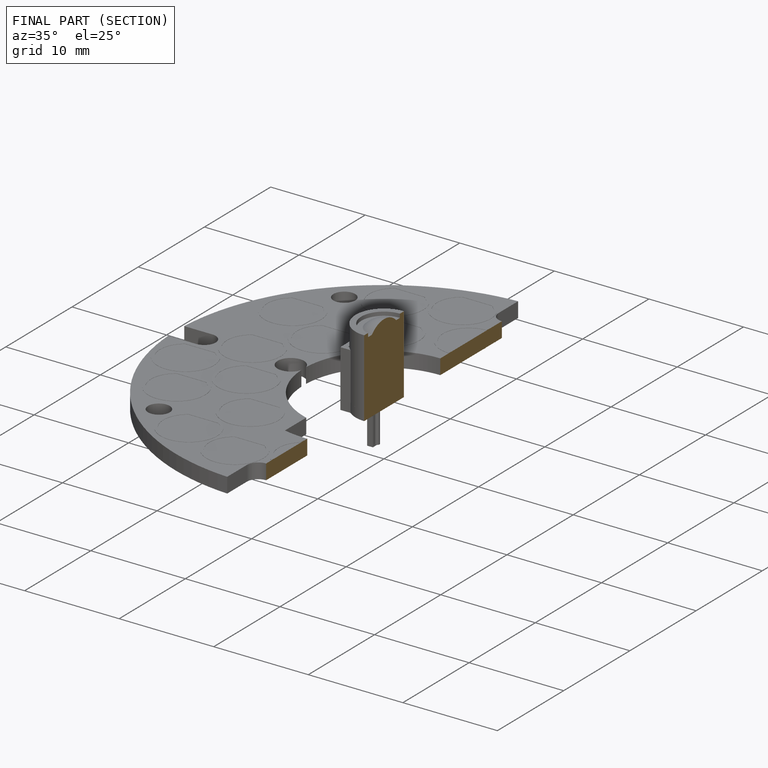
[diagram: finished part — half-section view (interior)]
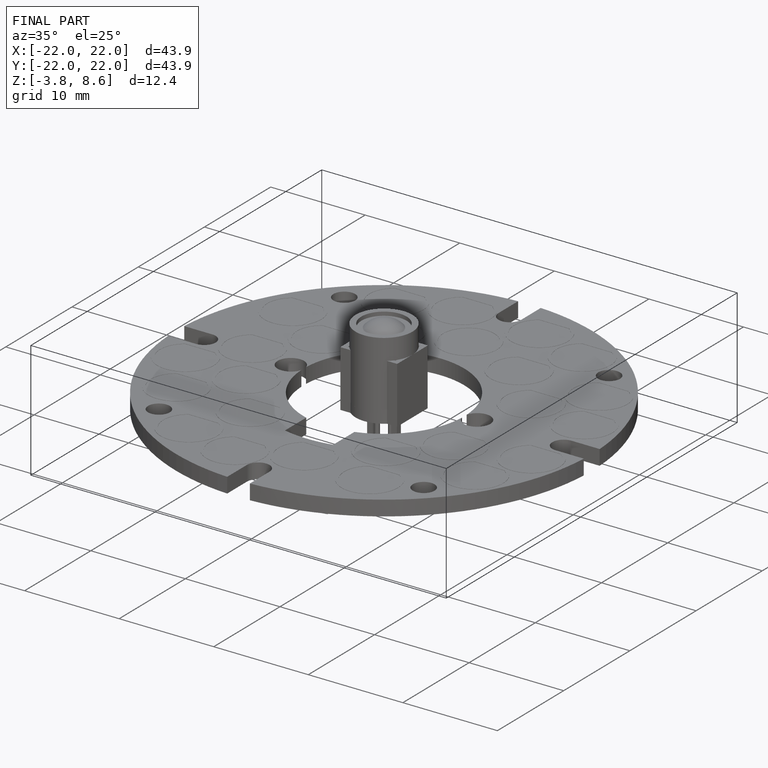
[diagram: finished part — iso view with bounding-box wireframe]
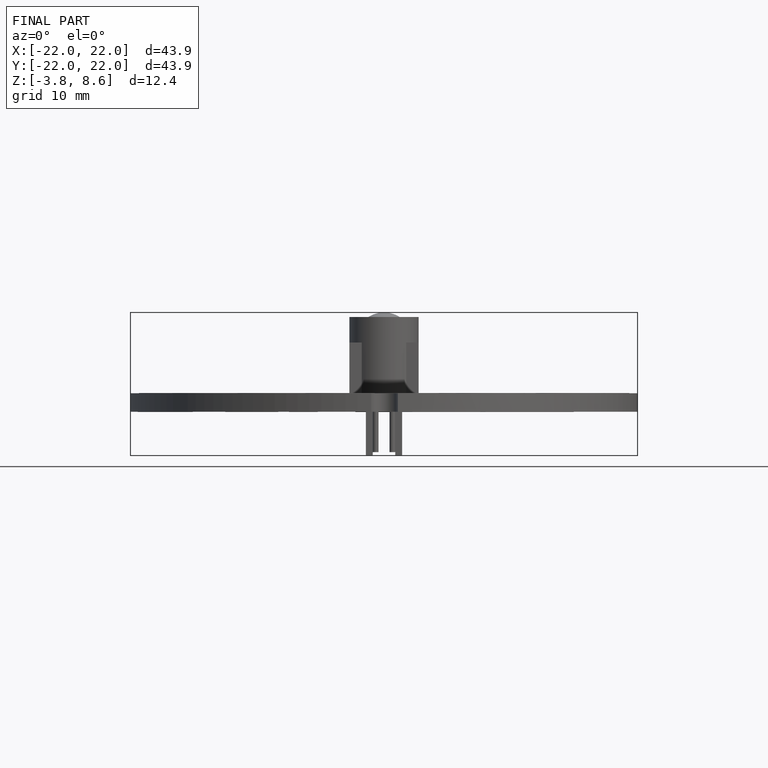
[diagram: finished part — front view with bounding-box wireframe]
